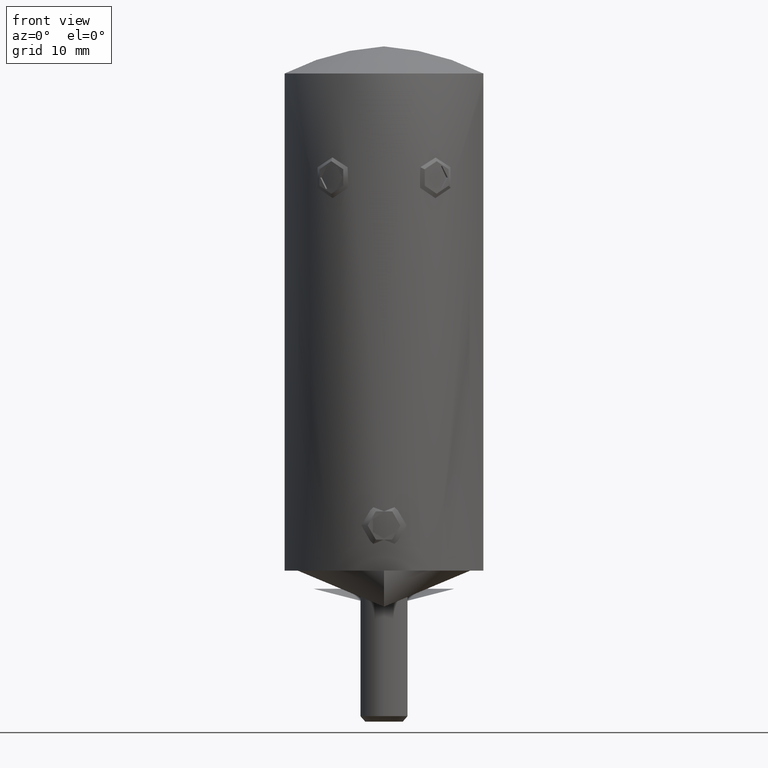
[diagram: clean part render]
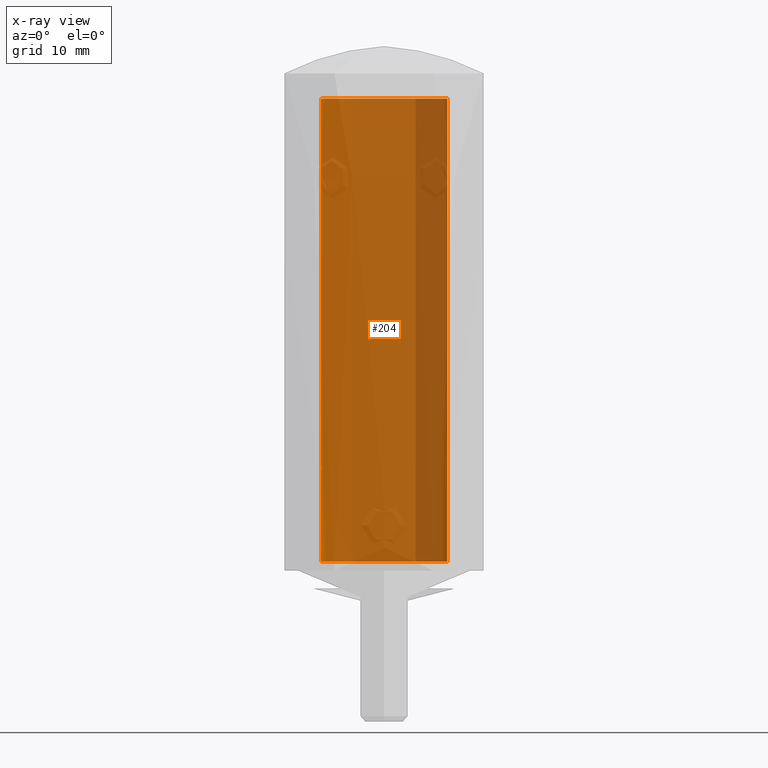
[diagram: x-ray — body ghosted, one internal face saturated and labeled with its STEP entity id]
A machine part, front view, then the same camera in x-ray: the body is ghosted and one INTERNAL B-rep face — a face not visible from any outside direction — is saturated and labeled: STEP entity #204.
In plain terms, the highlighted cylindrical surface (partial cylindrical patch) has radius 7 mm, axis along (0, 0, 1).
Its self-contained STEP definition (entity closure, byte-faithful):
#22 = VERTEX_POINT ( 'NONE', #11387 ) ;
#30 = CARTESIAN_POINT ( 'NONE',  ( 6.999999999999995559, -5.927387245860330880E-19, 49.39940828047591026 ) ) ;
#44 = CARTESIAN_POINT ( 'NONE',  ( -6.993923164209693510, 0.2916140825320512886, 8.438982371794873316 ) ) ;
#66 = EDGE_CURVE ( 'NONE', #7222, #1530, #5735, .T. ) ;
#73 = VERTEX_POINT ( 'NONE', #13250 ) ;
#74 = VERTEX_POINT ( 'NONE', #21924 ) ;
#100 = CARTESIAN_POINT ( 'NONE',  ( -6.975689736892555892, 0.5828830882876741004, 9.236500366633075387 ) ) ;
#106 = CARTESIAN_POINT ( 'NONE',  ( 6.888583070666343566, 1.265004164998520197, 49.10680606806086246 ) ) ;
#109 = CARTESIAN_POINT ( 'NONE',  ( -6.985511624158850630, 0.4501414763621794934, 8.990568659855767919 ) ) ;
#128 = DIRECTION ( 'NONE',  ( 0.000000000000000000, 0.000000000000000000, -1.000000000000000000 ) ) ;
#183 = CARTESIAN_POINT ( 'NONE',  ( 4.906518496979884958, 5.009203093844459609, 43.65973177399768446 ) ) ;
#204 = ADVANCED_FACE ( 'NONE', ( #10794 ), #8938, .F. ) ;
#212 = EDGE_CURVE ( 'NONE', #10608, #74, #4114, .T. ) ;
#250 = CARTESIAN_POINT ( 'NONE',  ( 4.359741012046949749, 5.479281829763901435, 34.32338510542538756 ) ) ;
#267 = CARTESIAN_POINT ( 'NONE',  ( 0.000000000000000000, 0.000000000000000000, 6.993950320512813512 ) ) ;
#312 = B_SPLINE_CURVE_WITH_KNOTS ( 'NONE', 3,
 ( #7593, #9385, #16173, #4310, #16027, #5895 ),
 .UNSPECIFIED., .F., .F.,
 ( 4, 2, 4 ),
 ( 0.000000000000000000, 0.0001370123827340183830, 0.0002740247654680367660 ),
 .UNSPECIFIED. ) ;
#317 = CARTESIAN_POINT ( 'NONE',  ( 4.968555832157324659, 4.935859069622506645, 33.65888611414150944 ) ) ;
#336 = LINE ( 'NONE', #11846, #20242 ) ;
#346 = VERTEX_POINT ( 'NONE', #14546 ) ;
#370 = DIRECTION ( 'NONE',  ( -0.000000000000000000, -0.000000000000000000, 1.000000000000000000 ) ) ;
#624 = CARTESIAN_POINT ( 'NONE',  ( -7.000000000000000888, 0.2610699012936794627, 32.14600281952412075 ) ) ;
#626 = VECTOR ( 'NONE', #370, 1000.000000000000000 ) ;
#725 = AXIS2_PLACEMENT_3D ( 'NONE', #267, #9052, #1856 ) ;
#772 = CARTESIAN_POINT ( 'NONE',  ( -4.016636445814717682, 5.735556909576748907, 40.75080087506890436 ) ) ;
#814 = CIRCLE ( 'NONE', #8644, 6.999999999999995559 ) ;
#827 = CARTESIAN_POINT ( 'NONE',  ( -6.993923164209693510, 0.2916140825320512886, 10.21983173076923279 ) ) ;
#832 = CARTESIAN_POINT ( 'NONE',  ( -6.978757802357542950, 0.5452346919516181112, 11.02843178862051410 ) ) ;
#880 = CARTESIAN_POINT ( 'NONE',  ( -6.998156588207514517, 0.1610190784660975594, 10.61744992361146522 ) ) ;
#893 = DIRECTION ( 'NONE',  ( -1.000000000000000000, 0.000000000000000000, 0.000000000000000000 ) ) ;
#908 = B_SPLINE_CURVE_WITH_KNOTS ( 'NONE', 3,
 ( #13540, #12053, #11819, #8679, #20692, #20987 ),
 .UNSPECIFIED., .F., .F.,
 ( 4, 2, 4 ),
 ( 0.000000000000000000, 0.0001369341710318049978, 0.0002738683420636099956 ),
 .UNSPECIFIED. ) ;
#919 = CARTESIAN_POINT ( 'NONE',  ( -6.734357332197992818, 1.920954020181363742, 48.70010116469608619 ) ) ;
#979 = ORIENTED_EDGE ( 'NONE', *, *, #15108, .T. ) ;
#1088 = DIRECTION ( 'NONE',  ( 0.000000000000000000, 0.000000000000000000, 1.000000000000000000 ) ) ;
#1096 = ORIENTED_EDGE ( 'NONE', *, *, #18020, .T. ) ;
#1108 = CARTESIAN_POINT ( 'NONE',  ( -6.975191266297922965, 0.5888198242284305994, 6.745496474921470309 ) ) ;
#1115 = EDGE_CURVE ( 'NONE', #12734, #15622, #9173, .T. ) ;
#1122 = VECTOR ( 'NONE', #16004, 1000.000000000000000 ) ;
#1126 = VERTEX_POINT ( 'NONE', #7566 ) ;
#1132 = CARTESIAN_POINT ( 'NONE',  ( 6.999999999999995559, -5.927387245860330880E-19, 49.39940828047591026 ) ) ;
#1186 = CARTESIAN_POINT ( 'NONE',  ( -6.999999999999995559, 0.000000000000000000, 7.828405448717951742 ) ) ;
#1199 = EDGE_CURVE ( 'NONE', #6439, #6143, #19649, .T. ) ;
#1220 = CARTESIAN_POINT ( 'NONE',  ( -6.982978908578843402, 0.4894453731455019607, 9.004723440354572617 ) ) ;
#1255 = EDGE_CURVE ( 'NONE', #13845, #7328, #2734, .T. ) ;
#1288 = CARTESIAN_POINT ( 'NONE',  ( 0.000000000000000000, 0.000000000000000000, 1.000000000000021760 ) ) ;
#1291 = VERTEX_POINT ( 'NONE', #8512 ) ;
#1300 = ORIENTED_EDGE ( 'NONE', *, *, #1115, .T. ) ;
#1333 = DIRECTION ( 'NONE',  ( 1.000000000000000000, 0.000000000000000000, 0.000000000000000000 ) ) ;
#1382 = DIRECTION ( 'NONE',  ( -0.000000000000000000, -0.000000000000000000, 1.000000000000000000 ) ) ;
#1410 = ORIENTED_EDGE ( 'NONE', *, *, #18425, .T. ) ;
#1427 = CARTESIAN_POINT ( 'NONE',  ( -6.990523480903471309, 0.3657506385901201917, 6.486430212463966782 ) ) ;
#1439 = CARTESIAN_POINT ( 'NONE',  ( -6.980876353886601215, 0.5171208461490348629, 9.345516922216271283 ) ) ;
#1440 = CARTESIAN_POINT ( 'NONE',  ( 0.000000000000000000, 0.000000000000000000, 7.156770833333330195 ) ) ;
#1458 = CARTESIAN_POINT ( 'NONE',  ( -6.998052630925505113, 0.1671527379292125082, 11.05954593914197659 ) ) ;
#1510 = CARTESIAN_POINT ( 'NONE',  ( -6.978300797048322401, 0.5509750586898770619, 6.570586085569856571 ) ) ;
#1511 = VERTEX_POINT ( 'NONE', #17534 ) ;
#1530 = VERTEX_POINT ( 'NONE', #20267 ) ;
#1562 = CARTESIAN_POINT ( 'NONE',  ( -6.992255263739547644, 0.3310283326966321216, 7.156873149467362083 ) ) ;
#1582 = EDGE_CURVE ( 'NONE', #15972, #5810, #9485, .T. ) ;
#1587 = DIRECTION ( 'NONE',  ( -0.000000000000000000, -0.000000000000000000, 1.000000000000000000 ) ) ;
#1593 = VERTEX_POINT ( 'NONE', #4668 ) ;
#1620 = CARTESIAN_POINT ( 'NONE',  ( -6.977336603706266516, 0.5629660452798668224, 8.885337017328458487 ) ) ;
#1632 = CARTESIAN_POINT ( 'NONE',  ( -6.979136293074546415, 0.5404259276506226950, 7.536425859719732223 ) ) ;
#1639 = CARTESIAN_POINT ( 'NONE',  ( -6.999999999999995559, 8.572527594031467273E-16, 57.99999999999999289 ) ) ;
#1662 = CARTESIAN_POINT ( 'NONE',  ( -6.981410257884977710, 0.5098704640730203907, 9.351888172789761811 ) ) ;
#1714 = CARTESIAN_POINT ( 'NONE',  ( -6.999999999999995559, 6.822282560421373630E-12, 8.217234662197284933 ) ) ;
#1856 = DIRECTION ( 'NONE',  ( -1.000000000000000000, 0.000000000000000000, 0.000000000000000000 ) ) ;
#1859 = DIRECTION ( 'NONE',  ( -1.000000000000000000, 0.000000000000000000, 0.000000000000000000 ) ) ;
#1877 = AXIS2_PLACEMENT_3D ( 'NONE', #8595, #6652, #18620 ) ;
#1899 = CARTESIAN_POINT ( 'NONE',  ( -6.975137246310718631, 0.5894582142183795170, 9.195747917949017136 ) ) ;
#1905 = CARTESIAN_POINT ( 'NONE',  ( 5.870376529966799595, 3.825300994748022543, 46.37851730944384343 ) ) ;
#1927 = CARTESIAN_POINT ( 'NONE',  ( -6.998393933595229655, 0.1499411558493589647, 10.59635416666667318 ) ) ;
#1954 = CARTESIAN_POINT ( 'NONE',  ( -6.994605575281114263, 0.2747596153846154632, 10.56582532051282897 ) ) ;
#2134 = ORIENTED_EDGE ( 'NONE', *, *, #21856, .F. ) ;
#2173 = EDGE_CURVE ( 'NONE', #17593, #5739, #12114, .T. ) ;
#2244 = CIRCLE ( 'NONE', #14201, 6.999999999999995559 ) ;
#2245 = EDGE_CURVE ( 'NONE', #22282, #1511, #19140, .T. ) ;
#2267 = VERTEX_POINT ( 'NONE', #13686 ) ;
#2325 = ORIENTED_EDGE ( 'NONE', *, *, #19313, .T. ) ;
#2362 = CARTESIAN_POINT ( 'NONE',  ( -3.655382933633834153, 5.970254345762568526, 35.62956470776769891 ) ) ;
#2373 = CARTESIAN_POINT ( 'NONE',  ( -6.983852485567708435, 0.4759911326303037926, 8.377042280810723440 ) ) ;
#2418 = EDGE_CURVE ( 'NONE', #346, #5739, #15822, .T. ) ;
#2428 = CARTESIAN_POINT ( 'NONE',  ( -6.611031297507477866, 2.309956321828706471, 48.37336816417462870 ) ) ;
#2448 = CARTESIAN_POINT ( 'NONE',  ( -6.992613599630832510, 0.3233864536454382765, 11.15510758115494028 ) ) ;
#2469 = CARTESIAN_POINT ( 'NONE',  ( -6.975926048092667031, 0.5800480769230769162, 57.99999999999999289 ) ) ;
#2512 = CARTESIAN_POINT ( 'NONE',  ( -6.990270887320200188, 0.3707298341137595932, 10.21262541665706891 ) ) ;
#2518 = B_SPLINE_CURVE_WITH_KNOTS ( 'NONE', 3,
 ( #4929, #5084, #18682, #13653, #10362, #12019 ),
 .UNSPECIFIED., .F., .F.,
 ( 4, 2, 4 ),
 ( 0.000000000000000000, 0.0001352648156522844405, 0.0002705296313045688810 ),
 .UNSPECIFIED. ) ;
#2519 = DIRECTION ( 'NONE',  ( 0.000000000000000000, 0.000000000000000000, -1.000000000000000000 ) ) ;
#2526 = CARTESIAN_POINT ( 'NONE',  ( -6.985313249679779624, 0.4540790630715514364, 11.11013651070508601 ) ) ;
#2582 = CARTESIAN_POINT ( 'NONE',  ( -5.276021630941636786, 4.624689923852043805, 33.37471456375607204 ) ) ;
#2625 = EDGE_CURVE ( 'NONE', #2940, #7682, #7537, .T. ) ;
#2648 = CARTESIAN_POINT ( 'NONE',  ( -6.928691501776661710, 1.027784795415321195, 49.21221570769370146 ) ) ;
#2671 = EDGE_CURVE ( 'NONE', #15118, #10470, #8799, .T. ) ;
#2700 = CARTESIAN_POINT ( 'NONE',  ( -6.999999999999995559, 0.000000000000000000, 11.64451121794871469 ) ) ;
#2704 = CARTESIAN_POINT ( 'NONE',  ( -6.991491920302551399, 0.3467049090110387310, 10.57064046662852519 ) ) ;
#2728 = CARTESIAN_POINT ( 'NONE',  ( 6.999999999999995559, 0.000000000000000000, 57.99999999999999289 ) ) ;
#2734 = CIRCLE ( 'NONE', #12743, 6.999999999999995559 ) ;
#2765 = EDGE_CURVE ( 'NONE', #7226, #15257, #5943, .T. ) ;
#2814 = ORIENTED_EDGE ( 'NONE', *, *, #12382, .T. ) ;
#2909 = CARTESIAN_POINT ( 'NONE',  ( -6.979136293074545527, 0.5404259276506220289, 6.864791244335112452 ) ) ;
#2940 = VERTEX_POINT ( 'NONE', #14381 ) ;
#2988 = AXIS2_PLACEMENT_3D ( 'NONE', #7836, #1088, #21443 ) ;
#3029 = CARTESIAN_POINT ( 'NONE',  ( 0.000000000000000000, 0.000000000000000000, 9.375200320512814045 ) ) ;
#3034 = CARTESIAN_POINT ( 'NONE',  ( -6.993729378862254542, 0.2962252103365384248, 6.485136217948721082 ) ) ;
#3042 = CARTESIAN_POINT ( 'NONE',  ( -6.999733706235544695, 0.06105769230769231282, 10.87318083934295565 ) ) ;
#3046 = CARTESIAN_POINT ( 'NONE',  ( -6.984330604154168398, 0.4681089743589743613, 57.99999999999999289 ) ) ;
#3085 = B_SPLINE_CURVE_WITH_KNOTS ( 'NONE', 3,
 ( #11899, #13678, #1632, #22133, #11814, #3446 ),
 .UNSPECIFIED., .F., .F.,
 ( 4, 2, 4 ),
 ( 0.000000000000000000, 0.0001296520078280015507, 0.0002593040156560031013 ),
 .UNSPECIFIED. ) ;
#3127 = VERTEX_POINT ( 'NONE', #11173 ) ;
#3174 = CARTESIAN_POINT ( 'NONE',  ( -6.978367668599761764, 0.5500020157131935150, 9.310538615506413151 ) ) ;
#3239 = CARTESIAN_POINT ( 'NONE',  ( -6.993729378862254542, 0.2962252103365384248, 6.485136217948721082 ) ) ;
#3261 = CARTESIAN_POINT ( 'NONE',  ( -6.999727933340092356, 0.06171950459328569283, 10.90135257210054931 ) ) ;
#3266 = CARTESIAN_POINT ( 'NONE',  ( -6.999777645199423581, 0.05883047230112805476, 11.06035176852786250 ) ) ;
#3301 = DIRECTION ( 'NONE',  ( -0.000000000000000000, -0.000000000000000000, 1.000000000000000000 ) ) ;
#3358 = VERTEX_POINT ( 'NONE', #2700 ) ;
#3432 = CARTESIAN_POINT ( 'NONE',  ( 3.468281400383606439, 6.080486315491487659, 37.96762995942553687 ) ) ;
#3446 = CARTESIAN_POINT ( 'NONE',  ( -6.975072415830049444, 0.5902243589743590979, 7.373652844551282115 ) ) ;
#3467 = CARTESIAN_POINT ( 'NONE',  ( 0.000000000000000000, 0.000000000000000000, 9.609254807692302336 ) ) ;
#3471 = DIRECTION ( 'NONE',  ( -0.000000000000000000, -0.000000000000000000, 1.000000000000000000 ) ) ;
#3481 = CARTESIAN_POINT ( 'NONE',  ( -6.984330604154168398, 0.4681089743589743613, 11.25781249999999467 ) ) ;
#3496 = CARTESIAN_POINT ( 'NONE',  ( 5.271235655894027872, 4.611217460982597771, 33.38449821825411590 ) ) ;
#3505 = VERTEX_POINT ( 'NONE', #13970 ) ;
#3574 = CARTESIAN_POINT ( 'NONE',  ( -6.975711601572104570, 0.5828406137837846002, 7.303705376855785580 ) ) ;
#3650 = CARTESIAN_POINT ( 'NONE',  ( 6.984745093254800530, 0.5258923355929293608, 49.35941717753718905 ) ) ;
#3700 = EDGE_CURVE ( 'NONE', #3358, #22, #6501, .T. ) ;
#3723 = CARTESIAN_POINT ( 'NONE',  ( 3.955337484900655731, 5.776827208771210032, 34.93539008049922501 ) ) ;
#3796 = EDGE_CURVE ( 'NONE', #17542, #16929, #312, .T. ) ;
#3857 = LINE ( 'NONE', #10533, #7846 ) ;
#3882 = CARTESIAN_POINT ( 'NONE',  ( -6.998393933595229655, 0.1499411558493589647, 10.59635416666667318 ) ) ;
#3893 = CARTESIAN_POINT ( 'NONE',  ( -6.992269128914476717, 0.3312836199741278076, 8.437864498309846084 ) ) ;
#3954 = DIRECTION ( 'NONE',  ( -0.000000000000000000, -0.000000000000000000, 1.000000000000000000 ) ) ;
#3986 = EDGE_CURVE ( 'NONE', #7755, #13924, #21589, .T. ) ;
#4015 = DIRECTION ( 'NONE',  ( 0.000000000000000000, 0.000000000000000000, 1.000000000000000000 ) ) ;
#4024 = CARTESIAN_POINT ( 'NONE',  ( -6.989310702890290550, 0.3866987179487179627, 57.99999999999999289 ) ) ;
#4038 = CARTESIAN_POINT ( 'NONE',  ( -6.975168945471281745, 0.5890836042297992181, 9.955013894102261673 ) ) ;
#4044 = B_SPLINE_CURVE_WITH_KNOTS ( 'NONE', 3,
 ( #6794, #7009, #20535, #22281, #13669, #8594, #20613, #13732, #18932, #13811 ),
 .UNSPECIFIED., .F., .F.,
 ( 4, 2, 2, 2, 4 ),
 ( 0.000000000000000000, 9.575658788308767893E-05, 0.0001915131757661753579, 0.0002872697636492630097, 0.0003830263515323507157 ),
 .UNSPECIFIED. ) ;
#4086 = EDGE_CURVE ( 'NONE', #8769, #16126, #15639, .T. ) ;
#4093 = CARTESIAN_POINT ( 'NONE',  ( -6.999999999999988454, 0.1331964725967407226, 49.39940828047588184 ) ) ;
#4114 = CIRCLE ( 'NONE', #17743, 6.999999999999995559 ) ;
#4176 = CARTESIAN_POINT ( 'NONE',  ( -6.543738411085444184, 2.492623006460873203, 48.19456803383835108 ) ) ;
#4186 = DIRECTION ( 'NONE',  ( 1.000000000000000000, 0.000000000000000000, 0.000000000000000000 ) ) ;
#4221 = CARTESIAN_POINT ( 'NONE',  ( 0.000000000000000000, 0.000000000000000000, 11.25781249999999467 ) ) ;
#4235 = DIRECTION ( 'NONE',  ( 1.000000000000000000, 0.000000000000000000, 0.000000000000000000 ) ) ;
#4295 = EDGE_CURVE ( 'NONE', #16929, #14520, #19427, .T. ) ;
#4310 = CARTESIAN_POINT ( 'NONE',  ( -6.979367170375266660, 0.5374862058803300258, 9.742090909212389960 ) ) ;
#4316 = CARTESIAN_POINT ( 'NONE',  ( -4.513954613622011003, 5.354015904551115312, 34.13626347998638977 ) ) ;
#4344 = ORIENTED_EDGE ( 'NONE', *, *, #2765, .T. ) ;
#4352 = CARTESIAN_POINT ( 'NONE',  ( -6.992945226585870699, 0.3141927083333333481, 8.581450320512818308 ) ) ;
#4355 = CARTESIAN_POINT ( 'NONE',  ( 6.999999999999992006, 0.000000000000000000, 52.20360331117451835 ) ) ;
#4356 = AXIS2_PLACEMENT_3D ( 'NONE', #16096, #4383, #9610 ) ;
#4383 = DIRECTION ( 'NONE',  ( 0.000000000000000000, 0.000000000000000000, 1.000000000000000000 ) ) ;
#4387 = CARTESIAN_POINT ( 'NONE',  ( -4.443635638328728987, 5.412522082055398975, 42.21272435028447489 ) ) ;
#4457 = CARTESIAN_POINT ( 'NONE',  ( -6.987780971491175386, 0.4148260599986984265, 10.59092108744495597 ) ) ;
#4535 = DIRECTION ( 'NONE',  ( 0.000000000000000000, 0.000000000000000000, -1.000000000000000000 ) ) ;
#4583 = CARTESIAN_POINT ( 'NONE',  ( -6.999999999999995559, 0.000000000000000000, 11.57327724358974130 ) ) ;
#4614 = CARTESIAN_POINT ( 'NONE',  ( -6.975072415830049444, 0.5902243589743590979, 9.175172776442305889 ) ) ;
#4634 = CARTESIAN_POINT ( 'NONE',  ( -6.983575710892729660, 0.4792392828525641191, 9.375200320512814045 ) ) ;
#4668 = CARTESIAN_POINT ( 'NONE',  ( -6.983836538944188099, 0.4754231770833333148, 6.922716346153841904 ) ) ;
#4737 = DIRECTION ( 'NONE',  ( 0.000000000000000000, 0.000000000000000000, 1.000000000000000000 ) ) ;
#4784 = CARTESIAN_POINT ( 'NONE',  ( -6.999999999999995559, 8.572527594031467273E-16, 57.99999999999999289 ) ) ;
#4793 = CARTESIAN_POINT ( 'NONE',  ( -6.997602991302841247, 0.1831730769230769384, 10.65963792067308269 ) ) ;
#4822 = AXIS2_PLACEMENT_3D ( 'NONE', #1288, #8264, #13266 ) ;
#4838 = CARTESIAN_POINT ( 'NONE',  ( -6.980354219200949117, 0.5240753519136597260, 9.338852402072914671 ) ) ;
#4909 = DIRECTION ( 'NONE',  ( -0.000000000000000000, -0.000000000000000000, 1.000000000000000000 ) ) ;
#4923 = ORIENTED_EDGE ( 'NONE', *, *, #3700, .F. ) ;
#4929 = CARTESIAN_POINT ( 'NONE',  ( -6.975072415830049444, 0.5902243589743589869, 10.86252754407051846 ) ) ;
#4932 = CARTESIAN_POINT ( 'NONE',  ( -6.998563910360752871, 0.1432152236574820159, 11.04421904568840951 ) ) ;
#5004 = VERTEX_POINT ( 'NONE', #21696 ) ;
#5013 = ORIENTED_EDGE ( 'NONE', *, *, #11166, .T. ) ;
#5016 = CARTESIAN_POINT ( 'NONE',  ( -6.995375128963767786, 0.2564238607800123360, 11.15513886547716815 ) ) ;
#5024 = CARTESIAN_POINT ( 'NONE',  ( -6.982983413948095297, 0.4893754566616207446, 8.968810940914650587 ) ) ;
#5063 = DIRECTION ( 'NONE',  ( 1.000000000000000000, 0.000000000000000000, 0.000000000000000000 ) ) ;
#5084 = CARTESIAN_POINT ( 'NONE',  ( -6.975171153017885040, 0.5890575161885401867, 10.81733116289036012 ) ) ;
#5163 = CARTESIAN_POINT ( 'NONE',  ( 5.709968510572453582, 4.057751013838752918, 45.93707633461480100 ) ) ;
#5215 = LINE ( 'NONE', #6691, #19410 ) ;
#5262 = ORIENTED_EDGE ( 'NONE', *, *, #4086, .T. ) ;
#5276 = DIRECTION ( 'NONE',  ( 1.000000000000000000, 0.000000000000000000, 0.000000000000000000 ) ) ;
#5300 = ORIENTED_EDGE ( 'NONE', *, *, #7550, .F. ) ;
#5314 = CARTESIAN_POINT ( 'NONE',  ( 3.480954223475210885, 6.073194233690685451, 36.39721272856005641 ) ) ;
#5356 = CARTESIAN_POINT ( 'NONE',  ( -6.999999999999995559, 8.572527594031467273E-16, 57.99999999999999289 ) ) ;
#5363 = CARTESIAN_POINT ( 'NONE',  ( -6.999999999999995559, 8.572527594031467273E-16, 57.99999999999999289 ) ) ;
#5402 = DIRECTION ( 'NONE',  ( -0.000000000000000000, -0.000000000000000000, 1.000000000000000000 ) ) ;
#5414 = VECTOR ( 'NONE', #5689, 1000.000000000000000 ) ;
#5426 = VERTEX_POINT ( 'NONE', #14596 ) ;
#5454 = CARTESIAN_POINT ( 'NONE',  ( 4.507723755154894540, 5.359312962515585532, 34.14347000413675914 ) ) ;
#5478 = B_SPLINE_CURVE_WITH_KNOTS ( 'NONE', 3,
 ( #44, #3893, #12623, #5557, #2373, #16042, #7397, #7468, #19243, #12403 ),
 .UNSPECIFIED., .F., .F.,
 ( 4, 2, 2, 2, 4 ),
 ( 0.000000000000000000, 0.0001179767162651244384, 0.0002359534325302488768, 0.0003539301487953732880, 0.0004719068650604977535 ),
 .UNSPECIFIED. ) ;
#5536 = LINE ( 'NONE', #2728, #19986 ) ;
#5557 = CARTESIAN_POINT ( 'NONE',  ( -6.986032632502583439, 0.4434813926506070980, 8.400486848746957946 ) ) ;
#5615 = CARTESIAN_POINT ( 'NONE',  ( -6.999999999999999112, 0.01016127060035310406, 10.73889666718411107 ) ) ;
#5627 = CARTESIAN_POINT ( 'NONE',  ( 0.000000000000000000, 0.000000000000000000, 11.25781249999999467 ) ) ;
#5629 = CARTESIAN_POINT ( 'NONE',  ( 6.999999999999995559, -1.069105884036878258E-46, 32.14600281952411365 ) ) ;
#5657 = CARTESIAN_POINT ( 'NONE',  ( -6.975072415830049444, 0.5902243589743590979, 7.373652844551282115 ) ) ;
#5688 = CIRCLE ( 'NONE', #6345, 6.999999999999995559 ) ;
#5689 = DIRECTION ( 'NONE',  ( -0.000000000000000000, -0.000000000000000000, 1.000000000000000000 ) ) ;
#5712 = EDGE_CURVE ( 'NONE', #1530, #18285, #9998, .T. ) ;
#5735 = LINE ( 'NONE', #6310, #20745 ) ;
#5739 = VERTEX_POINT ( 'NONE', #4583 ) ;
#5754 = CARTESIAN_POINT ( 'NONE',  ( -6.999572894926471278, 0.08162138506031074714, 10.63915891840698080 ) ) ;
#5763 = CARTESIAN_POINT ( 'NONE',  ( -6.983852485567714652, 0.4759911326303153944, 10.15789163978508114 ) ) ;
#5773 = CARTESIAN_POINT ( 'NONE',  ( -6.999726386330049621, 0.06189685584760252351, 10.82991391746099552 ) ) ;
#5810 = VERTEX_POINT ( 'NONE', #18558 ) ;
#5828 = CARTESIAN_POINT ( 'NONE',  ( -6.999999999999995559, 8.572527594031274002E-16, 49.39940828047589605 ) ) ;
#5829 = CARTESIAN_POINT ( 'NONE',  ( -6.999987181472783426, 0.02936360170756957891, 10.70195729518574979 ) ) ;
#5895 = CARTESIAN_POINT ( 'NONE',  ( -6.984351910703994193, 0.4677909655448718174, 9.680488782051282826 ) ) ;
#5902 = EDGE_CURVE ( 'NONE', #16126, #11051, #2244, .T. ) ;
#5938 = ORIENTED_EDGE ( 'NONE', *, *, #66, .T. ) ;
#5943 = LINE ( 'NONE', #15737, #16076 ) ;
#5949 = CARTESIAN_POINT ( 'NONE',  ( -7.000000000000000888, 6.835901262026448293E-12, 9.998084021171697700 ) ) ;
#5974 = CARTESIAN_POINT ( 'NONE',  ( -6.983378714962022116, 0.4821013621794871806, 11.08926782852564052 ) ) ;
#6040 = CARTESIAN_POINT ( 'NONE',  ( -6.882762550482688368, 1.301561327987563521, 32.21941108549695798 ) ) ;
#6055 = CIRCLE ( 'NONE', #11785, 6.999999999999995559 ) ;
#6067 = EDGE_CURVE ( 'NONE', #5004, #10406, #18862, .T. ) ;
#6133 = ORIENTED_EDGE ( 'NONE', *, *, #11576, .T. ) ;
#6143 = VERTEX_POINT ( 'NONE', #19233 ) ;
#6162 = EDGE_CURVE ( 'NONE', #18500, #10147, #11796, .T. ) ;
#6171 = CARTESIAN_POINT ( 'NONE',  ( -6.983793213084888762, 0.4760591947115384581, 10.62895007011218240 ) ) ;
#6310 = CARTESIAN_POINT ( 'NONE',  ( -6.975926048092667031, 0.5800480769230769162, 57.99999999999999289 ) ) ;
#6313 = CARTESIAN_POINT ( 'NONE',  ( -6.999961102973563776, 0.05654581292592481684, 10.11787136219349748 ) ) ;
#6316 = ORIENTED_EDGE ( 'NONE', *, *, #7519, .T. ) ;
#6321 = DIRECTION ( 'NONE',  ( 0.000000000000000000, 0.000000000000000000, 1.000000000000000000 ) ) ;
#6345 = AXIS2_PLACEMENT_3D ( 'NONE', #10168, #10455, #13676 ) ;
#6372 = EDGE_CURVE ( 'NONE', #17598, #21738, #20738, .T. ) ;
#6412 = CARTESIAN_POINT ( 'NONE',  ( -6.999999999999993783, 0.007907160690601761424, 10.97944520244698197 ) ) ;
#6428 = ORIENTED_EDGE ( 'NONE', *, *, #19784, .T. ) ;
#6436 = B_SPLINE_CURVE_WITH_KNOTS ( 'NONE', 3,
 ( #9058, #2448, #19547, #17800, #2526, #7477 ),
 .UNSPECIFIED., .F., .F.,
 ( 4, 2, 4 ),
 ( 0.000000000000000000, 0.0001048519133931838853, 0.0002097038267863677707 ),
 .UNSPECIFIED. ) ;
#6439 = VERTEX_POINT ( 'NONE', #16121 ) ;
#6469 = AXIS2_PLACEMENT_3D ( 'NONE', #11741, #13220, #16810 ) ;
#6481 = VECTOR ( 'NONE', #6515, 1000.000000000000000 ) ;
#6501 = LINE ( 'NONE', #1639, #15558 ) ;
#6503 = ORIENTED_EDGE ( 'NONE', *, *, #20084, .T. ) ;
#6512 = CARTESIAN_POINT ( 'NONE',  ( -6.999999999999995559, 6.822282560421373630E-12, 8.217234662197284933 ) ) ;
#6515 = DIRECTION ( 'NONE',  ( -0.000000000000000000, -0.000000000000000000, 1.000000000000000000 ) ) ;
#6553 = VERTEX_POINT ( 'NONE', #11874 ) ;
#6577 = ORIENTED_EDGE ( 'NONE', *, *, #9908, .T. ) ;
#6621 = CARTESIAN_POINT ( 'NONE',  ( -6.975926048092667031, 0.5800480769230769162, 57.99999999999999289 ) ) ;
#6628 = CARTESIAN_POINT ( 'NONE',  ( -6.978300797048319737, 0.5509750586898745084, 7.242220700954467461 ) ) ;
#6639 = CARTESIAN_POINT ( 'NONE',  ( -6.999699122789866834, 0.06574008209051425411, 10.92947201391968015 ) ) ;
#6650 = CARTESIAN_POINT ( 'NONE',  ( -6.975355233235646324, 0.5869125839159093916, 8.822634284688527728 ) ) ;
#6652 = DIRECTION ( 'NONE',  ( 0.000000000000000000, 0.000000000000000000, -1.000000000000000000 ) ) ;
#6654 = VERTEX_POINT ( 'NONE', #3034 ) ;
#6674 = CARTESIAN_POINT ( 'NONE',  ( -6.998163288277094551, 0.1633117209089772204, 8.413756389117235557 ) ) ;
#6691 = CARTESIAN_POINT ( 'NONE',  ( -6.994605575281114263, 0.2747596153846154077, 57.99999999999999289 ) ) ;
#6729 = ORIENTED_EDGE ( 'NONE', *, *, #15857, .T. ) ;
#6759 = CARTESIAN_POINT ( 'NONE',  ( -6.999999999999995559, 0.000000000000000000, 8.581450320512818308 ) ) ;
#6794 = CARTESIAN_POINT ( 'NONE',  ( -6.975072415830049444, 0.5902243589743589869, 8.777820763221148681 ) ) ;
#6797 = ORIENTED_EDGE ( 'NONE', *, *, #212, .T. ) ;
#6821 = CARTESIAN_POINT ( 'NONE',  ( -6.975185519710941584, 0.5888877354552816135, 10.90625314056816997 ) ) ;
#6844 = CARTESIAN_POINT ( 'NONE',  ( -6.975072415830049444, 0.5902243589743589869, 10.86252754407051846 ) ) ;
#6848 = EDGE_CURVE ( 'NONE', #12795, #346, #15085, .T. ) ;
#6870 = CARTESIAN_POINT ( 'NONE',  ( 6.609966749525822749, 2.313107632880133657, 48.37054425271381319 ) ) ;
#6926 = ORIENTED_EDGE ( 'NONE', *, *, #1199, .T. ) ;
#6956 = CARTESIAN_POINT ( 'NONE',  ( -6.984343760806194013, 0.4688249907980752695, 7.177814552741412335 ) ) ;
#6971 = CARTESIAN_POINT ( 'NONE',  ( 0.000000000000000000, 0.000000000000000000, 52.20360331117451835 ) ) ;
#6980 = CARTESIAN_POINT ( 'NONE',  ( -6.980184269215653714, 0.5271453394497152001, 7.215240515509816710 ) ) ;
#7006 = CARTESIAN_POINT ( 'NONE',  ( 6.217533132915800564, 3.225659211463324905, 32.65913758347663531 ) ) ;
#7009 = CARTESIAN_POINT ( 'NONE',  ( -6.975175102049227860, 0.5890108478679535464, 8.745643877088797424 ) ) ;
#7043 = ORIENTED_EDGE ( 'NONE', *, *, #7435, .T. ) ;
#7161 = CARTESIAN_POINT ( 'NONE',  ( 3.741211930332147606, 5.917749615504189542, 35.39192438417801867 ) ) ;
#7199 = CARTESIAN_POINT ( 'NONE',  ( -6.952498616693251421, 0.8141025641025640969, 57.99999999999999289 ) ) ;
#7200 = AXIS2_PLACEMENT_3D ( 'NONE', #6971, #15478, #5276 ) ;
#7222 = VERTEX_POINT ( 'NONE', #13257 ) ;
#7226 = VERTEX_POINT ( 'NONE', #18424 ) ;
#7273 = ORIENTED_EDGE ( 'NONE', *, *, #15002, .T. ) ;
#7328 = VERTEX_POINT ( 'NONE', #6759 ) ;
#7340 = LINE ( 'NONE', #7199, #8125 ) ;
#7397 = CARTESIAN_POINT ( 'NONE',  ( -6.978068893818804241, 0.5538693984491513955, 8.286707862624551169 ) ) ;
#7406 = EDGE_CURVE ( 'NONE', #18206, #1291, #336, .T. ) ;
#7435 = EDGE_CURVE ( 'NONE', #21938, #2267, #5215, .T. ) ;
#7447 = DIRECTION ( 'NONE',  ( 0.000000000000000000, 0.000000000000000000, 1.000000000000000000 ) ) ;
#7457 = CARTESIAN_POINT ( 'NONE',  ( -6.970579123422647072, 0.6533020451706040843, 49.32221655430807061 ) ) ;
#7468 = CARTESIAN_POINT ( 'NONE',  ( -6.975677100225954774, 0.5832201906683368575, 8.214072422629190129 ) ) ;
#7477 = CARTESIAN_POINT ( 'NONE',  ( -6.983378714962022116, 0.4821013621794871806, 11.08926782852564052 ) ) ;
#7519 = EDGE_CURVE ( 'NONE', #14520, #10608, #7340, .T. ) ;
#7525 = CARTESIAN_POINT ( 'NONE',  ( -6.183802349246660945, 3.294664250671874850, 47.23127411132368536 ) ) ;
#7537 = LINE ( 'NONE', #4784, #11541 ) ;
#7550 = EDGE_CURVE ( 'NONE', #15972, #16459, #17222, .T. ) ;
#7560 = CARTESIAN_POINT ( 'NONE',  ( -6.997892940281262852, 0.1720964063075262618, 10.63854454792193671 ) ) ;
#7566 = CARTESIAN_POINT ( 'NONE',  ( -6.984020024671357518, 0.4727201021634615530, 7.899639423076924238 ) ) ;
#7593 = CARTESIAN_POINT ( 'NONE',  ( -6.975072415830049444, 0.5902243589743589869, 9.915179286858981200 ) ) ;
#7596 = CARTESIAN_POINT ( 'NONE',  ( -6.975926048092667031, 0.5800480769230769162, 9.375200320512814045 ) ) ;
#7600 = CARTESIAN_POINT ( 'NONE',  ( -6.999999999999995559, 8.572527588244542431E-16, 32.14600281952411365 ) ) ;
#7666 = CARTESIAN_POINT ( 'NONE',  ( -6.994055034876375920, 0.2884339943910256276, 11.15604967948717885 ) ) ;
#7682 = VERTEX_POINT ( 'NONE', #11072 ) ;
#7740 = VERTEX_POINT ( 'NONE', #13011 ) ;
#7748 = CARTESIAN_POINT ( 'NONE',  ( -3.560944021736228482, 6.027010091504671152, 38.74210623119559216 ) ) ;
#7755 = VERTEX_POINT ( 'NONE', #14499 ) ;
#7792 = CARTESIAN_POINT ( 'NONE',  ( 0.000000000000000000, 0.000000000000000000, 9.680488782051289931 ) ) ;
#7800 = EDGE_LOOP ( 'NONE', ( #11905, #6503, #15675, #6729, #21322, #979, #17650, #20271, #4923, #5013, #2814, #6926, #16293, #6133, #13892, #10588, #17898, #20922, #21964, #8794, #14575, #16006, #9582, #13483, #7043, #13246, #12289, #18553, #14913, #11118, #15072, #4344, #6428, #5300, #20366, #14999, #10242, #14924, #6316, #6797, #21154, #21814, #5262, #17407, #1096, #11607, #18793, #18919, #10175, #9858, #2134, #12522, #1410, #19621, #15375, #1300, #20339, #21063, #19585, #5938, #21163, #20086, #12462, #6577, #16760, #10603, #19030, #9082, #2325, #7273, #15624 ) ) ;
#7806 = B_SPLINE_CURVE_WITH_KNOTS ( 'NONE', 3,
 ( #10909, #9183, #2512, #21206, #5763, #18303, #8047, #14838, #4038, #21276 ),
 .UNSPECIFIED., .F., .F.,
 ( 4, 2, 2, 2, 4 ),
 ( 0.000000000000000000, 0.0001179767162651419482, 0.0002359534325302838965, 0.0003539301487954258718, 0.0004719068650605677930 ),
 .UNSPECIFIED. ) ;
#7836 = CARTESIAN_POINT ( 'NONE',  ( 0.000000000000000000, 0.000000000000000000, 11.57327724358974130 ) ) ;
#7846 = VECTOR ( 'NONE', #5402, 1000.000000000000000 ) ;
#7874 = VERTEX_POINT ( 'NONE', #4355 ) ;
#7987 = CARTESIAN_POINT ( 'NONE',  ( -6.975926048092667031, 0.5800480769230769162, 6.993950320512813512 ) ) ;
#8006 = CARTESIAN_POINT ( 'NONE',  ( 0.000000000000000000, 0.000000000000000000, 7.594350961538464340 ) ) ;
#8041 = CARTESIAN_POINT ( 'NONE',  ( -6.975192037068975281, 0.5888107155160745565, 9.133393318208645084 ) ) ;
#8047 = CARTESIAN_POINT ( 'NONE',  ( -6.978068893818807794, 0.5538693984491531719, 10.06755722159890354 ) ) ;
#8082 = CARTESIAN_POINT ( 'NONE',  ( -6.975782502722529976, 0.5820651234904969940, 10.95005352462430892 ) ) ;
#8089 = B_SPLINE_CURVE_WITH_KNOTS ( 'NONE', 3,
 ( #13275, #18685, #11719, #1458, #4932, #10148, #16866, #6639, #3261, #11485 ),
 .UNSPECIFIED., .F., .F.,
 ( 4, 2, 2, 2, 4 ),
 ( 0.000000000000000000, 8.293040105299263507E-05, 0.0001658608021059852701, 0.0002487912031589779188, 0.0003317216042119705403 ),
 .UNSPECIFIED. ) ;
#8118 = CARTESIAN_POINT ( 'NONE',  ( -6.975926048092667031, 0.5800480769230769162, 9.446434294871787429 ) ) ;
#8125 = VECTOR ( 'NONE', #12075, 1000.000000000000000 ) ;
#8187 = CARTESIAN_POINT ( 'NONE',  ( -6.981952425540615792, 0.5023348758421947169, 9.357886053086167166 ) ) ;
#8191 = CARTESIAN_POINT ( 'NONE',  ( -6.975926048092667031, 0.5800480769230769162, 6.922716346153848122 ) ) ;
#8212 = DIRECTION ( 'NONE',  ( -0.000000000000000000, -0.000000000000000000, 1.000000000000000000 ) ) ;
#8248 = B_SPLINE_CURVE_WITH_KNOTS ( 'NONE', 3,
 ( #6171, #9602, #4457, #2704, #9666, #14594 ),
 .UNSPECIFIED., .F., .F.,
 ( 4, 2, 4 ),
 ( 5.421010862427614855E-20, 0.0001077436105361409188, 0.0002154872210722817835 ),
 .UNSPECIFIED. ) ;
#8264 = DIRECTION ( 'NONE',  ( -0.000000000000000000, -0.000000000000000000, -1.000000000000000000 ) ) ;
#8283 = EDGE_CURVE ( 'NONE', #13881, #16915, #3857, .T. ) ;
#8285 = EDGE_CURVE ( 'NONE', #18206, #17426, #16383, .T. ) ;
#8309 = B_SPLINE_CURVE_WITH_KNOTS ( 'NONE', 3,
 ( #18658, #21998, #20264, #1510, #16993, #13480, #11529, #1427, #18417, #3239 ),
 .UNSPECIFIED., .F., .F.,
 ( 4, 2, 2, 2, 4 ),
 ( 0.000000000000000000, 0.0001037594472690259683, 0.0002075188945380519365, 0.0003112783418070778777, 0.0004150377890761038730 ),
 .UNSPECIFIED. ) ;
#8337 = CARTESIAN_POINT ( 'NONE',  ( -6.977499106223290504, 0.5608085436698718729, 9.294744090544874382 ) ) ;
#8362 = CARTESIAN_POINT ( 'NONE',  ( -6.980291260872061088, 0.5255105247498750298, 8.940580860674320007 ) ) ;
#8400 = CIRCLE ( 'NONE', #6469, 6.999999999999995559 ) ;
#8481 = CIRCLE ( 'NONE', #4822, 6.999999999999995559 ) ;
#8512 = CARTESIAN_POINT ( 'NONE',  ( -6.999999999999995559, 0.000000000000000000, 7.156770833333330195 ) ) ;
#8537 = CARTESIAN_POINT ( 'NONE',  ( 0.000000000000000000, 0.000000000000000000, 11.64451121794871469 ) ) ;
#8544 = VECTOR ( 'NONE', #18460, 1000.000000000000000 ) ;
#8562 = EDGE_CURVE ( 'NONE', #73, #74, #13726, .T. ) ;
#8589 = AXIS2_PLACEMENT_3D ( 'NONE', #17137, #1587, #5063 ) ;
#8592 = CARTESIAN_POINT ( 'NONE',  ( 6.999999999999993783, 0.2605658453356453630, 49.39940828047588894 ) ) ;
#8594 = CARTESIAN_POINT ( 'NONE',  ( -6.983998366705320926, 0.4738696323052049020, 8.599986412782216760 ) ) ;
#8595 = CARTESIAN_POINT ( 'NONE',  ( 0.000000000000000000, 0.000000000000000000, 10.43353365384615650 ) ) ;
#8603 = DIRECTION ( 'NONE',  ( -1.000000000000000000, 0.000000000000000000, 0.000000000000000000 ) ) ;
#8628 = DIRECTION ( 'NONE',  ( 0.000000000000000000, 0.000000000000000000, 1.000000000000000000 ) ) ;
#8644 = AXIS2_PLACEMENT_3D ( 'NONE', #8537, #10233, #8603 ) ;
#8658 = CARTESIAN_POINT ( 'NONE',  ( 6.734141161540562415, 1.921840307510082280, 48.69953197633399355 ) ) ;
#8679 = CARTESIAN_POINT ( 'NONE',  ( -6.979037350977948861, 0.5416948144594656567, 7.961010790531600989 ) ) ;
#8737 = CARTESIAN_POINT ( 'NONE',  ( 3.658636384495384863, 5.969300131432169643, 39.25228719337518157 ) ) ;
#8769 = VERTEX_POINT ( 'NONE', #8118 ) ;
#8775 = EDGE_CURVE ( 'NONE', #2267, #17598, #8089, .T. ) ;
#8794 = ORIENTED_EDGE ( 'NONE', *, *, #12555, .T. ) ;
#8799 = B_SPLINE_CURVE_WITH_KNOTS ( 'NONE', 3,
 ( #109, #5024, #8362, #1620, #18845, #6650, #13520, #18929 ),
 .UNSPECIFIED., .F., .F.,
 ( 4, 2, 2, 4 ),
 ( 0.000000000000000000, 0.0001335179647753690670, 0.0002002769471630514049, 0.0002670359295507337429 ),
 .UNSPECIFIED. ) ;
#8802 = CARTESIAN_POINT ( 'NONE',  ( 6.696491117382622704, 2.054943547856491914, 32.33831612405845135 ) ) ;
#8820 = CARTESIAN_POINT ( 'NONE',  ( -6.963660825291711376, 0.7123397435897436125, 57.99999999999999289 ) ) ;
#8894 = DIRECTION ( 'NONE',  ( 1.000000000000000000, 0.000000000000000000, 0.000000000000000000 ) ) ;
#8929 = CARTESIAN_POINT ( 'NONE',  ( -6.986575440937946802, 0.4346903205438344964, 7.168155230307906578 ) ) ;
#8938 = CYLINDRICAL_SURFACE ( 'NONE', #8589, 6.999999999999995559 ) ;
#8982 = EDGE_CURVE ( 'NONE', #13881, #7222, #8400, .T. ) ;
#9052 = DIRECTION ( 'NONE',  ( 0.000000000000000000, 0.000000000000000000, -1.000000000000000000 ) ) ;
#9054 = CARTESIAN_POINT ( 'NONE',  ( -6.954851611465190153, 0.7937499999999999556, 57.99999999999999289 ) ) ;
#9058 = CARTESIAN_POINT ( 'NONE',  ( -6.994055034876375920, 0.2884339943910256276, 11.15604967948717885 ) ) ;
#9082 = ORIENTED_EDGE ( 'NONE', *, *, #16091, .T. ) ;
#9173 = LINE ( 'NONE', #2469, #1122 ) ;
#9174 = CARTESIAN_POINT ( 'NONE',  ( -6.529125221628195419, 2.537035524969038836, 32.44790261631237627 ) ) ;
#9183 = CARTESIAN_POINT ( 'NONE',  ( -6.992269128914475829, 0.3312836199741318044, 10.21871385728419845 ) ) ;
#9323 = CARTESIAN_POINT ( 'NONE',  ( -3.481655308363389878, 6.072794059604133210, 36.39164563829520205 ) ) ;
#9336 = AXIS2_PLACEMENT_3D ( 'NONE', #8006, #4737, #1333 ) ;
#9377 = CARTESIAN_POINT ( 'NONE',  ( -6.998163288277093663, 0.1633117209089812449, 10.19460574809159148 ) ) ;
#9385 = CARTESIAN_POINT ( 'NONE',  ( -6.975189467077232308, 0.5888410868117489594, 9.869087627559915532 ) ) ;
#9394 = CARTESIAN_POINT ( 'NONE',  ( -6.926379704457726660, 1.045850282268647513, 32.19202771094199989 ) ) ;
#9428 = EDGE_CURVE ( 'NONE', #2940, #7226, #10510, .T. ) ;
#9467 = CARTESIAN_POINT ( 'NONE',  ( -5.844569233647344042, 3.860116473935931936, 32.92743376114237464 ) ) ;
#9485 = B_SPLINE_CURVE_WITH_KNOTS ( 'NONE', 3,
 ( #5949, #9969, #6313, #11612, #9377, #17912, #21927, #827 ),
 .UNSPECIFIED., .F., .F.,
 ( 4, 2, 2, 4 ),
 ( 8.124888564058340432E-05, 0.0002770453866935098015, 0.0003749436372199745722, 0.0004728418877464393428 ),
 .UNSPECIFIED. ) ;
#9580 = CARTESIAN_POINT ( 'NONE',  ( -6.981540128545550061, 0.5091568182339801796, 6.895678274253547180 ) ) ;
#9582 = ORIENTED_EDGE ( 'NONE', *, *, #18880, .T. ) ;
#9602 = CARTESIAN_POINT ( 'NONE',  ( -6.985770201188606698, 0.4470567591857314560, 10.60770308308822685 ) ) ;
#9610 = DIRECTION ( 'NONE',  ( 1.000000000000000000, 0.000000000000000000, 0.000000000000000000 ) ) ;
#9666 = CARTESIAN_POINT ( 'NONE',  ( -6.993195266980181124, 0.3106620906838044593, 10.56691455518414635 ) ) ;
#9675 = LINE ( 'NONE', #8820, #5414 ) ;
#9731 = VECTOR ( 'NONE', #13410, 1000.000000000000000 ) ;
#9762 = CARTESIAN_POINT ( 'NONE',  ( -6.976193689173542545, 0.5773470099078386042, 9.091973170070174248 ) ) ;
#9773 = AXIS2_PLACEMENT_3D ( 'NONE', #21357, #14409, #4186 ) ;
#9804 = EDGE_CURVE ( 'NONE', #10676, #7682, #16371, .T. ) ;
#9842 = CARTESIAN_POINT ( 'NONE',  ( -6.996470658696545719, 0.2242866322337392082, 11.15156467815496555 ) ) ;
#9858 = ORIENTED_EDGE ( 'NONE', *, *, #1255, .T. ) ;
#9908 = EDGE_CURVE ( 'NONE', #20597, #1291, #14757, .T. ) ;
#9917 = DIRECTION ( 'NONE',  ( 0.000000000000000000, 0.000000000000000000, 1.000000000000000000 ) ) ;
#9918 = CARTESIAN_POINT ( 'NONE',  ( -6.998746131322585384, 0.1350120444620113713, 11.11806485040431269 ) ) ;
#9969 = CARTESIAN_POINT ( 'NONE',  ( -6.999999999999981348, 0.01659546550303194618, 10.06147470541083599 ) ) ;
#9998 = CIRCLE ( 'NONE', #9336, 6.999999999999995559 ) ;
#10147 = VERTEX_POINT ( 'NONE', #6844 ) ;
#10148 = CARTESIAN_POINT ( 'NONE',  ( -6.999273441903917536, 0.1028527741470360302, 11.00478241886189856 ) ) ;
#10168 = CARTESIAN_POINT ( 'NONE',  ( 0.000000000000000000, 0.000000000000000000, 9.446434294871787429 ) ) ;
#10175 = ORIENTED_EDGE ( 'NONE', *, *, #17742, .T. ) ;
#10214 = CARTESIAN_POINT ( 'NONE',  ( -6.976151579454833218, 0.5773418291420117088, 9.256612545995176689 ) ) ;
#10233 = DIRECTION ( 'NONE',  ( 0.000000000000000000, 0.000000000000000000, -1.000000000000000000 ) ) ;
#10242 = ORIENTED_EDGE ( 'NONE', *, *, #3796, .T. ) ;
#10248 = CARTESIAN_POINT ( 'NONE',  ( -6.999999999999983125, 0.01659546550301442200, 8.280625346436439216 ) ) ;
#10286 = CIRCLE ( 'NONE', #4356, 6.999999999999995559 ) ;
#10362 = CARTESIAN_POINT ( 'NONE',  ( -6.981395117864715338, 0.5112392759052762914, 10.65749523744785776 ) ) ;
#10366 = CARTESIAN_POINT ( 'NONE',  ( -6.977139173185732623, 0.5652867786686208706, 9.285372614787739565 ) ) ;
#10372 = CARTESIAN_POINT ( 'NONE',  ( 6.333276096579821157, 3.003985707210386824, 47.63300103334584179 ) ) ;
#10406 = VERTEX_POINT ( 'NONE', #19568 ) ;
#10443 = CARTESIAN_POINT ( 'NONE',  ( 3.885700098209074582, 5.824044900225917587, 40.25492866069594555 ) ) ;
#10455 = DIRECTION ( 'NONE',  ( 0.000000000000000000, 0.000000000000000000, -1.000000000000000000 ) ) ;
#10461 = B_SPLINE_CURVE_WITH_KNOTS ( 'NONE', 3,
 ( #20277, #20502, #22249, #8187, #1662, #1439, #4838, #18584, #3174, #8337 ),
 .UNSPECIFIED., .F., .F.,
 ( 4, 3, 3, 4 ),
 ( 0.000000000000000000, 2.891064384268525074E-05, 5.786952075068932616E-05, 0.0001156858324613495022 ),
 .UNSPECIFIED. ) ;
#10462 = CARTESIAN_POINT ( 'NONE',  ( -6.952498616693251421, 0.8141025641025640969, 9.609254807692316547 ) ) ;
#10470 = VERTEX_POINT ( 'NONE', #21394 ) ;
#10510 = CIRCLE ( 'NONE', #1877, 6.999999999999995559 ) ;
#10512 = CARTESIAN_POINT ( 'NONE',  ( 4.084022778616227534, 5.687761335169469135, 34.71781929702832059 ) ) ;
#10533 = CARTESIAN_POINT ( 'NONE',  ( -6.999999999999995559, 8.572527594031467273E-16, 57.99999999999999289 ) ) ;
#10534 = AXIS2_PLACEMENT_3D ( 'NONE', #20555, #128, #1859 ) ;
#10588 = ORIENTED_EDGE ( 'NONE', *, *, #14394, .T. ) ;
#10603 = ORIENTED_EDGE ( 'NONE', *, *, #8285, .T. ) ;
#10608 = VERTEX_POINT ( 'NONE', #10462 ) ;
#10676 = VERTEX_POINT ( 'NONE', #1927 ) ;
#10744 = CARTESIAN_POINT ( 'NONE',  ( -6.999999999999998224, -6.231402355523683553E-14, 10.77827216039748315 ) ) ;
#10783 = DIRECTION ( 'NONE',  ( 1.000000000000000000, 0.000000000000000000, 0.000000000000000000 ) ) ;
#10794 = FACE_OUTER_BOUND ( 'NONE', #7800, .T. ) ;
#10798 = CARTESIAN_POINT ( 'NONE',  ( 0.000000000000000000, 0.000000000000000000, 6.485136217948721082 ) ) ;
#10831 = DIRECTION ( 'NONE',  ( 1.000000000000000000, 0.000000000000000000, 0.000000000000000000 ) ) ;
#10837 = VECTOR ( 'NONE', #16532, 1000.000000000000000 ) ;
#10899 = CARTESIAN_POINT ( 'NONE',  ( -3.743214576281218342, 5.916527297826571719, 35.38642320864081370 ) ) ;
#10909 = CARTESIAN_POINT ( 'NONE',  ( -6.993923164209693510, 0.2916140825320512886, 10.21983173076923279 ) ) ;
#10918 = CARTESIAN_POINT ( 'NONE',  ( -6.999664716065429282, 0.07154789997686503145, 10.78696085337594823 ) ) ;
#10970 = CARTESIAN_POINT ( 'NONE',  ( -5.871669589630320374, 3.823312732358455257, 46.38206079502113255 ) ) ;
#10993 = EDGE_CURVE ( 'NONE', #7740, #20597, #12677, .T. ) ;
#11011 = CARTESIAN_POINT ( 'NONE',  ( -6.975072415830049444, 0.5902243589743589869, 8.134329927884616396 ) ) ;
#11032 = CARTESIAN_POINT ( 'NONE',  ( -3.436353086296747517, 6.098905675228710521, 37.69911024286461299 ) ) ;
#11051 = VERTEX_POINT ( 'NONE', #4634 ) ;
#11072 = CARTESIAN_POINT ( 'NONE',  ( -6.999999999999998224, -6.231402355523683553E-14, 10.77827216039748315 ) ) ;
#11111 = CARTESIAN_POINT ( 'NONE',  ( -6.790759178291198239, 1.714123903975907082, 48.84902007299147186 ) ) ;
#11118 = ORIENTED_EDGE ( 'NONE', *, *, #2625, .F. ) ;
#11166 = EDGE_CURVE ( 'NONE', #3358, #19979, #814, .T. ) ;
#11173 = CARTESIAN_POINT ( 'NONE',  ( -6.975072415830049444, 0.5902243589743590979, 6.702018229166665897 ) ) ;
#11185 = CARTESIAN_POINT ( 'NONE',  ( -5.229115245903954268, 4.659428970267528669, 44.58310987281886639 ) ) ;
#11188 = EDGE_CURVE ( 'NONE', #73, #8769, #5688, .T. ) ;
#11262 = DIRECTION ( 'NONE',  ( -0.000000000000000000, -0.000000000000000000, 1.000000000000000000 ) ) ;
#11268 = CARTESIAN_POINT ( 'NONE',  ( -6.975926048092667031, 0.5800480769230769162, 7.828405448717951742 ) ) ;
#11387 = CARTESIAN_POINT ( 'NONE',  ( -6.999999999999995559, 8.572527588244542431E-16, 32.14600281952411365 ) ) ;
#11420 = EDGE_CURVE ( 'NONE', #6143, #5426, #9675, .T. ) ;
#11485 = CARTESIAN_POINT ( 'NONE',  ( -6.999733706235544695, 0.06105769230769231282, 10.87318083934295565 ) ) ;
#11529 = CARTESIAN_POINT ( 'NONE',  ( -6.986575440937951242, 0.4346903205438489293, 6.496520614923300130 ) ) ;
#11541 = VECTOR ( 'NONE', #8212, 1000.000000000000000 ) ;
#11545 = EDGE_CURVE ( 'NONE', #5810, #17542, #7806, .T. ) ;
#11558 = CARTESIAN_POINT ( 'NONE',  ( -6.994055034876375920, 0.2884339943910256276, 11.15604967948717885 ) ) ;
#11560 = CARTESIAN_POINT ( 'NONE',  ( -6.954851611465190153, 0.7937499999999999556, 11.64451121794871469 ) ) ;
#11576 = EDGE_CURVE ( 'NONE', #5426, #20616, #19348, .T. ) ;
#11607 = ORIENTED_EDGE ( 'NONE', *, *, #12679, .T. ) ;
#11612 = CARTESIAN_POINT ( 'NONE',  ( -6.998768601485779506, 0.1337956683989156015, 10.17861829400057161 ) ) ;
#11635 = CARTESIAN_POINT ( 'NONE',  ( -6.980087826432750830, 0.5281873663763317905, 9.024330313367933343 ) ) ;
#11640 = CARTESIAN_POINT ( 'NONE',  ( -6.998140889070014303, 0.1641044427392147620, 11.13228830248514711 ) ) ;
#11645 = CARTESIAN_POINT ( 'NONE',  ( 6.999999999999995559, 0.000000000000000000, 57.99999999999999289 ) ) ;
#11663 = CARTESIAN_POINT ( 'NONE',  ( -6.990523480903464204, 0.3657506385901120871, 7.158064827848596323 ) ) ;
#11676 = CARTESIAN_POINT ( 'NONE',  ( -6.999961102973567328, 0.05654581292591408237, 8.337022003219125565 ) ) ;
#11679 = CARTESIAN_POINT ( 'NONE',  ( -6.984351910703994193, 0.4677909655448718174, 9.680488782051282826 ) ) ;
#11687 = AXIS2_PLACEMENT_3D ( 'NONE', #19172, #12265, #8894 ) ;
#11719 = CARTESIAN_POINT ( 'NONE',  ( -6.996612248599139328, 0.2193118914996029511, 11.07976250972428112 ) ) ;
#11723 = CARTESIAN_POINT ( 'NONE',  ( -6.999999999999992895, 4.691187158040719708E-12, 10.94903033462065167 ) ) ;
#11741 = CARTESIAN_POINT ( 'NONE',  ( 0.000000000000000000, 0.000000000000000000, 7.665584935897436836 ) ) ;
#11785 = AXIS2_PLACEMENT_3D ( 'NONE', #5627, #12701, #10831 ) ;
#11796 = B_SPLINE_CURVE_WITH_KNOTS ( 'NONE', 3,
 ( #19000, #13879, #832, #8082, #6821, #17182 ),
 .UNSPECIFIED., .F., .F.,
 ( 4, 2, 4 ),
 ( 0.000000000000000000, 0.0001305349250431039052, 0.0002610698500862078104 ),
 .UNSPECIFIED. ) ;
#11814 = CARTESIAN_POINT ( 'NONE',  ( -6.975191266297922077, 0.5888198242284302664, 7.417131090306090968 ) ) ;
#11819 = CARTESIAN_POINT ( 'NONE',  ( -6.975846282831898115, 0.5813469331285500141, 8.042653546036302004 ) ) ;
#11846 = CARTESIAN_POINT ( 'NONE',  ( -6.999999999999995559, 8.572527594031467273E-16, 57.99999999999999289 ) ) ;
#11874 = CARTESIAN_POINT ( 'NONE',  ( -6.975072415830049444, 0.5902243589743590979, 9.175172776442305889 ) ) ;
#11899 = CARTESIAN_POINT ( 'NONE',  ( -6.983836538944188099, 0.4754231770833333148, 7.594350961538464340 ) ) ;
#11905 = ORIENTED_EDGE ( 'NONE', *, *, #3986, .F. ) ;
#12019 = CARTESIAN_POINT ( 'NONE',  ( -6.983793213084888762, 0.4760591947115384581, 10.62895007011218240 ) ) ;
#12033 = CARTESIAN_POINT ( 'NONE',  ( 3.561590191020322482, 6.026627094132541274, 38.74499863317272030 ) ) ;
#12053 = CARTESIAN_POINT ( 'NONE',  ( -6.975179036695960733, 0.5889643495398582118, 8.088583279048609853 ) ) ;
#12075 = DIRECTION ( 'NONE',  ( 0.000000000000000000, 0.000000000000000000, -1.000000000000000000 ) ) ;
#12114 = LINE ( 'NONE', #16513, #6481 ) ;
#12149 = EDGE_CURVE ( 'NONE', #21999, #1126, #908, .T. ) ;
#12160 = VECTOR ( 'NONE', #1382, 1000.000000000000000 ) ;
#12168 = CARTESIAN_POINT ( 'NONE',  ( 5.229410731061291173, 4.682904882016597270, 44.59146194178910605 ) ) ;
#12184 = AXIS2_PLACEMENT_3D ( 'NONE', #7792, #16153, #893 ) ;
#12236 = VERTEX_POINT ( 'NONE', #5629 ) ;
#12265 = DIRECTION ( 'NONE',  ( 0.000000000000000000, 0.000000000000000000, 1.000000000000000000 ) ) ;
#12289 = ORIENTED_EDGE ( 'NONE', *, *, #6372, .T. ) ;
#12319 = CARTESIAN_POINT ( 'NONE',  ( 6.999999999999996447, 0.5287478807086513077, 32.14600281952410654 ) ) ;
#12382 = EDGE_CURVE ( 'NONE', #19979, #6439, #18897, .T. ) ;
#12403 = CARTESIAN_POINT ( 'NONE',  ( -6.975072415830049444, 0.5902243589743589869, 8.134329927884616396 ) ) ;
#12407 = AXIS2_PLACEMENT_3D ( 'NONE', #10798, #4015, #4235 ) ;
#12462 = ORIENTED_EDGE ( 'NONE', *, *, #10993, .T. ) ;
#12522 = ORIENTED_EDGE ( 'NONE', *, *, #2245, .T. ) ;
#12555 = EDGE_CURVE ( 'NONE', #17593, #19022, #21617, .T. ) ;
#12600 = DIRECTION ( 'NONE',  ( 1.000000000000000000, 0.000000000000000000, 0.000000000000000000 ) ) ;
#12612 = CARTESIAN_POINT ( 'NONE',  ( -5.390527042967950599, 4.473439185618392600, 45.04264640824420951 ) ) ;
#12623 = CARTESIAN_POINT ( 'NONE',  ( -6.990270887320199300, 0.3707298341137482134, 8.431776057682712988 ) ) ;
#12677 = B_SPLINE_CURVE_WITH_KNOTS ( 'NONE', 3,
 ( #5657, #19351, #3574, #6628, #6980, #6956, #8929, #11663, #1562, #16742 ),
 .UNSPECIFIED., .F., .F.,
 ( 4, 2, 2, 2, 4 ),
 ( 0.000000000000000000, 0.0001037594472690341404, 0.0002075188945380682809, 0.0003112783418071027059, 0.0004150377890761371038 ),
 .UNSPECIFIED. ) ;
#12679 = EDGE_CURVE ( 'NONE', #19831, #6553, #12956, .T. ) ;
#12686 = CARTESIAN_POINT ( 'NONE',  ( -6.099067382008819926, 3.443960770532199067, 32.74202961873561435 ) ) ;
#12695 = LINE ( 'NONE', #11645, #12160 ) ;
#12701 = DIRECTION ( 'NONE',  ( 0.000000000000000000, 0.000000000000000000, 1.000000000000000000 ) ) ;
#12734 = VERTEX_POINT ( 'NONE', #19222 ) ;
#12737 = CIRCLE ( 'NONE', #10534, 6.999999999999995559 ) ;
#12743 = AXIS2_PLACEMENT_3D ( 'NONE', #20021, #18188, #18118 ) ;
#12766 = CARTESIAN_POINT ( 'NONE',  ( -6.888421988611565183, 1.265809417937941106, 49.10638194101848342 ) ) ;
#12795 = VERTEX_POINT ( 'NONE', #17318 ) ;
#12828 = CARTESIAN_POINT ( 'NONE',  ( -6.768356280952173343, 1.804393380317885542, 32.29221277188668893 ) ) ;
#12892 = CARTESIAN_POINT ( 'NONE',  ( -6.431689441040065347, 2.774188546640683040, 32.51265289282642357 ) ) ;
#12956 = B_SPLINE_CURVE_WITH_KNOTS ( 'NONE', 3,
 ( #18993, #10366, #20524, #15573, #10214, #18920, #100, #20736, #1899, #13871 ),
 .UNSPECIFIED., .F., .F.,
 ( 4, 3, 3, 4 ),
 ( 5.818439421673296370E-18, 3.117817001136899516E-05, 6.245957466926662001E-05, 0.0001246298115723789505 ),
 .UNSPECIFIED. ) ;
#13011 = CARTESIAN_POINT ( 'NONE',  ( -6.975072415830049444, 0.5902243589743590979, 7.373652844551282115 ) ) ;
#13062 = CARTESIAN_POINT ( 'NONE',  ( -6.983793213084888762, 0.4760591947115384581, 10.62895007011218240 ) ) ;
#13181 = DIRECTION ( 'NONE',  ( 1.000000000000000000, 0.000000000000000000, 0.000000000000000000 ) ) ;
#13211 = CARTESIAN_POINT ( 'NONE',  ( -6.975072415830049444, 0.5902243589743589869, 9.915179286858981200 ) ) ;
#13220 = DIRECTION ( 'NONE',  ( 0.000000000000000000, 0.000000000000000000, -1.000000000000000000 ) ) ;
#13223 = VERTEX_POINT ( 'NONE', #1132 ) ;
#13224 = CARTESIAN_POINT ( 'NONE',  ( -6.999999999999995559, 0.000000000000000000, 6.485136217948721082 ) ) ;
#13234 = LINE ( 'NONE', #6621, #13505 ) ;
#13246 = ORIENTED_EDGE ( 'NONE', *, *, #8775, .T. ) ;
#13250 = CARTESIAN_POINT ( 'NONE',  ( -6.999999999999995559, 0.000000000000000000, 9.446434294871787429 ) ) ;
#13257 = CARTESIAN_POINT ( 'NONE',  ( -6.975926048092667031, 0.5800480769230769162, 7.665584935897436836 ) ) ;
#13266 = DIRECTION ( 'NONE',  ( -1.000000000000000000, 0.000000000000000000, 0.000000000000000000 ) ) ;
#13271 = EDGE_CURVE ( 'NONE', #17426, #20180, #13234, .T. ) ;
#13275 = CARTESIAN_POINT ( 'NONE',  ( -6.994605575281114263, 0.2747596153846154077, 11.08481570512820724 ) ) ;
#13410 = DIRECTION ( 'NONE',  ( -0.000000000000000000, -0.000000000000000000, 1.000000000000000000 ) ) ;
#13480 = CARTESIAN_POINT ( 'NONE',  ( -6.984343760806193124, 0.4688249907980901465, 6.506179937356804110 ) ) ;
#13483 = ORIENTED_EDGE ( 'NONE', *, *, #14709, .T. ) ;
#13505 = VECTOR ( 'NONE', #20346, 1000.000000000000000 ) ;
#13520 = CARTESIAN_POINT ( 'NONE',  ( -6.975147358123694019, 0.5893387162230327991, 8.800367020293737852 ) ) ;
#13540 = CARTESIAN_POINT ( 'NONE',  ( -6.975072415830049444, 0.5902243589743589869, 8.134329927884616396 ) ) ;
#13548 = CARTESIAN_POINT ( 'NONE',  ( -6.995301349506843458, 0.2585603905065588237, 8.438089961402223338 ) ) ;
#13592 = AXIS2_PLACEMENT_3D ( 'NONE', #4221, #17737, #10783 ) ;
#13629 = CARTESIAN_POINT ( 'NONE',  ( -6.985511624158850630, 0.4501414763621794934, 8.990568659855767919 ) ) ;
#13653 = CARTESIAN_POINT ( 'NONE',  ( -6.978973174648984923, 0.5425100267020854794, 10.69123242855986256 ) ) ;
#13666 = CARTESIAN_POINT ( 'NONE',  ( 3.654514126624920589, 5.970787248853764773, 35.63201270983530122 ) ) ;
#13669 = CARTESIAN_POINT ( 'NONE',  ( -6.979979624355371115, 0.5297830293124771162, 8.632942016477517910 ) ) ;
#13676 = DIRECTION ( 'NONE',  ( -1.000000000000000000, 0.000000000000000000, 0.000000000000000000 ) ) ;
#13678 = CARTESIAN_POINT ( 'NONE',  ( -6.981540128545549173, 0.5091568182339791804, 7.567312889638160733 ) ) ;
#13686 = CARTESIAN_POINT ( 'NONE',  ( -6.994605575281114263, 0.2747596153846154077, 11.08481570512820724 ) ) ;
#13726 = LINE ( 'NONE', #21569, #18842 ) ;
#13732 = CARTESIAN_POINT ( 'NONE',  ( -6.989828574833159003, 0.3785639965393226003, 8.582740937638192236 ) ) ;
#13808 = CARTESIAN_POINT ( 'NONE',  ( 6.940849073122643986, 1.045535854523098829, 32.18245260687937304 ) ) ;
#13811 = CARTESIAN_POINT ( 'NONE',  ( -6.992945226585870699, 0.3141927083333333481, 8.581450320512818308 ) ) ;
#13820 = EDGE_CURVE ( 'NONE', #21738, #10676, #18814, .T. ) ;
#13845 = VERTEX_POINT ( 'NONE', #4352 ) ;
#13871 = CARTESIAN_POINT ( 'NONE',  ( -6.975072415830049444, 0.5902243589743590979, 9.175172776442305889 ) ) ;
#13878 = CARTESIAN_POINT ( 'NONE',  ( 6.929010080681713646, 1.025692969749520733, 49.21305287096291181 ) ) ;
#13879 = CARTESIAN_POINT ( 'NONE',  ( -6.981072906103180209, 0.5155016754099132070, 11.06130167759319605 ) ) ;
#13881 = VERTEX_POINT ( 'NONE', #14857 ) ;
#13884 = LINE ( 'NONE', #3046, #8544 ) ;
#13892 = ORIENTED_EDGE ( 'NONE', *, *, #21783, .T. ) ;
#13924 = VERTEX_POINT ( 'NONE', #13224 ) ;
#13942 = CARTESIAN_POINT ( 'NONE',  ( 5.704573600330701488, 4.063617009333411190, 33.03295163559153735 ) ) ;
#13970 = CARTESIAN_POINT ( 'NONE',  ( 6.999999999999995559, 0.000000000000000000, 1.000000000000021760 ) ) ;
#13995 = VECTOR ( 'NONE', #3954, 1000.000000000000000 ) ;
#14066 = EDGE_CURVE ( 'NONE', #18285, #7740, #3085, .T. ) ;
#14201 = AXIS2_PLACEMENT_3D ( 'NONE', #3029, #9917, #15056 ) ;
#14312 = VECTOR ( 'NONE', #2519, 1000.000000000000000 ) ;
#14323 = CARTESIAN_POINT ( 'NONE',  ( -6.996247190466161392, 0.2637179793440752040, 49.38956662888627136 ) ) ;
#14346 = CARTESIAN_POINT ( 'NONE',  ( -6.999121683082488055, 0.1127869882874110996, 10.71174588373494707 ) ) ;
#14377 = CARTESIAN_POINT ( 'NONE',  ( -6.984330604154168398, 0.4681089743589743613, 11.57327724358974130 ) ) ;
#14381 = CARTESIAN_POINT ( 'NONE',  ( -6.999999999999995559, 0.000000000000000000, 10.43353365384615650 ) ) ;
#14394 = EDGE_CURVE ( 'NONE', #21205, #12795, #6055, .T. ) ;
#14409 = DIRECTION ( 'NONE',  ( 0.000000000000000000, 0.000000000000000000, 1.000000000000000000 ) ) ;
#14436 = EDGE_CURVE ( 'NONE', #13223, #7874, #5536, .T. ) ;
#14465 = CARTESIAN_POINT ( 'NONE',  ( -3.658683201733006651, 5.969275837059561773, 39.25259743472527418 ) ) ;
#14499 = CARTESIAN_POINT ( 'NONE',  ( -6.999999999999995559, 8.572527594031467273E-16, 1.000000000000021760 ) ) ;
#14520 = VERTEX_POINT ( 'NONE', #16261 ) ;
#14546 = CARTESIAN_POINT ( 'NONE',  ( -6.989310702890290550, 0.3866987179487179627, 11.57327724358974130 ) ) ;
#14558 = EDGE_CURVE ( 'NONE', #6553, #15118, #16681, .T. ) ;
#14575 = ORIENTED_EDGE ( 'NONE', *, *, #15479, .T. ) ;
#14594 = CARTESIAN_POINT ( 'NONE',  ( -6.994605575281114263, 0.2747596153846154632, 10.56582532051282897 ) ) ;
#14596 = CARTESIAN_POINT ( 'NONE',  ( -6.963660825291711376, 0.7123397435897436125, 11.57327724358974130 ) ) ;
#14678 = EDGE_CURVE ( 'NONE', #15622, #16915, #16445, .T. ) ;
#14709 = EDGE_CURVE ( 'NONE', #15650, #21938, #8248, .T. ) ;
#14748 = CIRCLE ( 'NONE', #12407, 6.999999999999995559 ) ;
#14757 = CIRCLE ( 'NONE', #21300, 6.999999999999995559 ) ;
#14838 = CARTESIAN_POINT ( 'NONE',  ( -6.975677100225959215, 0.5832201906683410764, 9.994921781603544275 ) ) ;
#14857 = CARTESIAN_POINT ( 'NONE',  ( -6.999999999999995559, 0.000000000000000000, 7.665584935897436836 ) ) ;
#14861 = CARTESIAN_POINT ( 'NONE',  ( -6.975919415416912628, 0.5804755724375546544, 6.788797844209301324 ) ) ;
#14907 = CARTESIAN_POINT ( 'NONE',  ( -6.985511624158850630, 0.4501414763621794934, 8.990568659855767919 ) ) ;
#14913 = ORIENTED_EDGE ( 'NONE', *, *, #9804, .T. ) ;
#14924 = ORIENTED_EDGE ( 'NONE', *, *, #4295, .T. ) ;
#14999 = ORIENTED_EDGE ( 'NONE', *, *, #11545, .T. ) ;
#15002 = EDGE_CURVE ( 'NONE', #3127, #6654, #8309, .T. ) ;
#15056 = DIRECTION ( 'NONE',  ( 1.000000000000000000, 0.000000000000000000, 0.000000000000000000 ) ) ;
#15072 = ORIENTED_EDGE ( 'NONE', *, *, #9428, .T. ) ;
#15085 = LINE ( 'NONE', #4024, #13995 ) ;
#15108 = EDGE_CURVE ( 'NONE', #7874, #10406, #18060, .T. ) ;
#15118 = VERTEX_POINT ( 'NONE', #13629 ) ;
#15216 = CARTESIAN_POINT ( 'NONE',  ( -6.999555804688617044, 0.08303131880543149212, 11.08194396271720983 ) ) ;
#15257 = VERTEX_POINT ( 'NONE', #20937 ) ;
#15312 = B_SPLINE_CURVE_WITH_KNOTS ( 'NONE', 3,
 ( #17398, #12319, #13808, #15578, #8802, #15511, #17169, #7006, #20827, #20742, #13942, #18999, #3496, #317, #15444, #5454, #250, #10512, #3723, #7161, #13666, #20610, #5314, #15659, #17325, #18928, #3432, #12033, #8737, #10443, #19143, #17241, #20897, #183, #12168, #5163, #1905, #20675, #10372, #17100, #6870, #8658, #18844, #106, #13878, #3650, #8592, #30 ),
 .UNSPECIFIED., .F., .F.,
 ( 4, 2, 2, 2, 2, 2, 2, 2, 2, 2, 2, 2, 2, 2, 2, 2, 2, 2, 2, 2, 2, 2, 2, 4 ),
 ( 6.212942465973555034E-19, 0.001563248913099101042, 0.002344873369648650587, 0.003126497826198200783, 0.003908122282747751412, 0.004689746739297301174, 0.005471371195846851804, 0.006252995652396401566, 0.007034620108945951328, 0.007816244565495501090, 0.008597869022045050852, 0.009379493478594600614, 0.01016111793514415211, 0.01094274239169370187, 0.01250599130479280140, 0.01406924021789190092, 0.01563248913099100218, 0.01875898695718920123, 0.02032223587028831116, 0.02188548478338741762, 0.02266710923993697432, 0.02344873369648653449, 0.02423035815303608773, 0.02501198260958564096 ),
 .UNSPECIFIED. ) ;
#15375 = ORIENTED_EDGE ( 'NONE', *, *, #19600, .T. ) ;
#15422 = CARTESIAN_POINT ( 'NONE',  ( -6.999999999999995559, 0.000000000000000000, 10.36229967948718311 ) ) ;
#15444 = CARTESIAN_POINT ( 'NONE',  ( 4.812865473186884735, 5.087055614005110193, 33.81036071591309877 ) ) ;
#15478 = DIRECTION ( 'NONE',  ( -0.000000000000000000, -0.000000000000000000, 1.000000000000000000 ) ) ;
#15479 = EDGE_CURVE ( 'NONE', #19022, #18500, #6436, .T. ) ;
#15511 = CARTESIAN_POINT ( 'NONE',  ( 6.528144864526067792, 2.539509971987376158, 32.44855249710629863 ) ) ;
#15558 = VECTOR ( 'NONE', #3301, 1000.000000000000000 ) ;
#15573 = CARTESIAN_POINT ( 'NONE',  ( -6.976463014850416755, 0.5735536613291412067, 9.266308781934334604 ) ) ;
#15578 = CARTESIAN_POINT ( 'NONE',  ( 6.768637444681856685, 1.803518758480446627, 32.29203161796363730 ) ) ;
#15622 = VERTEX_POINT ( 'NONE', #11268 ) ;
#15624 = ORIENTED_EDGE ( 'NONE', *, *, #19050, .T. ) ;
#15639 = LINE ( 'NONE', #16605, #15907 ) ;
#15650 = VERTEX_POINT ( 'NONE', #13062 ) ;
#15659 = CARTESIAN_POINT ( 'NONE',  ( 3.433952408712102056, 6.099893553232222487, 36.91773717461482818 ) ) ;
#15675 = ORIENTED_EDGE ( 'NONE', *, *, #15816, .T. ) ;
#15737 = CARTESIAN_POINT ( 'NONE',  ( -6.952498616693251421, 0.8141025641025640969, 57.99999999999999289 ) ) ;
#15810 = CARTESIAN_POINT ( 'NONE',  ( -6.999151191932072358, 0.1145966760719356048, 10.61627999101685482 ) ) ;
#15816 = EDGE_CURVE ( 'NONE', #3505, #12236, #12695, .T. ) ;
#15822 = CIRCLE ( 'NONE', #2988, 6.999999999999995559 ) ;
#15857 = EDGE_CURVE ( 'NONE', #12236, #13223, #15312, .T. ) ;
#15907 = VECTOR ( 'NONE', #4535, 1000.000000000000000 ) ;
#15972 = VERTEX_POINT ( 'NONE', #17627 ) ;
#16004 = DIRECTION ( 'NONE',  ( 0.000000000000000000, 0.000000000000000000, -1.000000000000000000 ) ) ;
#16006 = ORIENTED_EDGE ( 'NONE', *, *, #6162, .T. ) ;
#16027 = CARTESIAN_POINT ( 'NONE',  ( -6.981911184932686254, 0.5042322159321854791, 9.708849671342564491 ) ) ;
#16033 = CARTESIAN_POINT ( 'NONE',  ( -5.707043208453854710, 4.060258378764383558, 33.03102120674012809 ) ) ;
#16042 = CARTESIAN_POINT ( 'NONE',  ( -6.979878195907902594, 0.5310964778666502628, 8.320290813412270836 ) ) ;
#16049 = CARTESIAN_POINT ( 'NONE',  ( -6.997602991302841247, 0.1831730769230769384, 10.65963792067308269 ) ) ;
#16076 = VECTOR ( 'NONE', #20899, 1000.000000000000000 ) ;
#16091 = EDGE_CURVE ( 'NONE', #20180, #1593, #10286, .T. ) ;
#16096 = CARTESIAN_POINT ( 'NONE',  ( 0.000000000000000000, 0.000000000000000000, 6.922716346153841904 ) ) ;
#16100 = CARTESIAN_POINT ( 'NONE',  ( -6.216937081624900330, 3.226831957418282659, 32.65955042707351907 ) ) ;
#16121 = CARTESIAN_POINT ( 'NONE',  ( -6.954851611465190153, 0.7937499999999999556, 11.25781249999999467 ) ) ;
#16126 = VERTEX_POINT ( 'NONE', #7596 ) ;
#16139 = CARTESIAN_POINT ( 'NONE',  ( -6.998393933595229655, 0.1499411558493589647, 10.59635416666667318 ) ) ;
#16153 = DIRECTION ( 'NONE',  ( 0.000000000000000000, 0.000000000000000000, -1.000000000000000000 ) ) ;
#16173 = CARTESIAN_POINT ( 'NONE',  ( -6.975952100803841205, 0.5801291302065467725, 9.822812119114439966 ) ) ;
#16249 = CARTESIAN_POINT ( 'NONE',  ( -3.525063430665318354, 6.048114512340551308, 36.13021454091501283 ) ) ;
#16261 = CARTESIAN_POINT ( 'NONE',  ( -6.952498616693251421, 0.8141025641025640969, 9.680488782051282826 ) ) ;
#16293 = ORIENTED_EDGE ( 'NONE', *, *, #11420, .T. ) ;
#16315 = CARTESIAN_POINT ( 'NONE',  ( -5.711598491451614024, 4.055500292299656806, 45.94159897543352855 ) ) ;
#16371 = B_SPLINE_CURVE_WITH_KNOTS ( 'NONE', 3,
 ( #3882, #15810, #5754, #5829, #5615, #10744 ),
 .UNSPECIFIED., .F., .F.,
 ( 4, 2, 4 ),
 ( 0.000000000000000000, 0.0001201119859128027621, 0.0002402239718256055242 ),
 .UNSPECIFIED. ) ;
#16383 = CIRCLE ( 'NONE', #725, 6.999999999999995559 ) ;
#16445 = CIRCLE ( 'NONE', #18679, 6.999999999999995559 ) ;
#16459 = VERTEX_POINT ( 'NONE', #15422 ) ;
#16513 = CARTESIAN_POINT ( 'NONE',  ( -6.999999999999995559, 8.572527594031467273E-16, 57.99999999999999289 ) ) ;
#16532 = DIRECTION ( 'NONE',  ( -0.000000000000000000, -0.000000000000000000, 1.000000000000000000 ) ) ;
#16581 = CARTESIAN_POINT ( 'NONE',  ( -6.975072415830049444, 0.5902243589743590979, 6.702018229166665897 ) ) ;
#16605 = CARTESIAN_POINT ( 'NONE',  ( -6.975926048092667031, 0.5800480769230769162, 57.99999999999999289 ) ) ;
#16625 = CARTESIAN_POINT ( 'NONE',  ( -6.999991798199302728, 0.02151585106976751371, 11.00910457826349820 ) ) ;
#16681 = B_SPLINE_CURVE_WITH_KNOTS ( 'NONE', 3,
 ( #4614, #8041, #9762, #11635, #1220, #14907 ),
 .UNSPECIFIED., .F., .F.,
 ( 4, 2, 4 ),
 ( 0.000000000000000000, 0.0001240503331287771743, 0.0002481006662575543486 ),
 .UNSPECIFIED. ) ;
#16742 = CARTESIAN_POINT ( 'NONE',  ( -6.993729378862254542, 0.2962252103365384248, 7.156770833333330195 ) ) ;
#16760 = ORIENTED_EDGE ( 'NONE', *, *, #7406, .F. ) ;
#16810 = DIRECTION ( 'NONE',  ( -1.000000000000000000, 0.000000000000000000, 0.000000000000000000 ) ) ;
#16866 = CARTESIAN_POINT ( 'NONE',  ( -6.999471210223981998, 0.08667378625699855010, 10.98135553034625644 ) ) ;
#16915 = VERTEX_POINT ( 'NONE', #1186 ) ;
#16929 = VERTEX_POINT ( 'NONE', #11679 ) ;
#16993 = CARTESIAN_POINT ( 'NONE',  ( -6.980184269215652826, 0.5271453394497238598, 6.543605900125205821 ) ) ;
#17100 = CARTESIAN_POINT ( 'NONE',  ( 6.542576593068734070, 2.495650333077028105, 48.19147596412058476 ) ) ;
#17126 = CARTESIAN_POINT ( 'NONE',  ( -6.998768601485782170, 0.1337956683989128259, 8.397768935026201476 ) ) ;
#17137 = CARTESIAN_POINT ( 'NONE',  ( 0.000000000000000000, 0.000000000000000000, 57.99999999999999289 ) ) ;
#17169 = CARTESIAN_POINT ( 'NONE',  ( 6.431954290161186805, 2.773546397066598335, 32.51247687341940917 ) ) ;
#17182 = CARTESIAN_POINT ( 'NONE',  ( -6.975072415830049444, 0.5902243589743589869, 10.86252754407051846 ) ) ;
#17183 = CARTESIAN_POINT ( 'NONE',  ( -6.983836538944188099, 0.4754231770833333148, 7.594350961538464340 ) ) ;
#17222 = LINE ( 'NONE', #5356, #626 ) ;
#17241 = CARTESIAN_POINT ( 'NONE',  ( 4.296117692449177738, 5.529338226374362009, 41.73179257754842553 ) ) ;
#17318 = CARTESIAN_POINT ( 'NONE',  ( -6.989310702890290550, 0.3866987179487179627, 11.25781249999999467 ) ) ;
#17325 = CARTESIAN_POINT ( 'NONE',  ( 3.429008357117429906, 6.102622216843096581, 37.17925373980554582 ) ) ;
#17398 = CARTESIAN_POINT ( 'NONE',  ( 6.999999999999995559, -1.069105884036878258E-46, 32.14600281952411365 ) ) ;
#17407 = ORIENTED_EDGE ( 'NONE', *, *, #5902, .T. ) ;
#17415 = CARTESIAN_POINT ( 'NONE',  ( -6.977499106223290504, 0.5608085436698718729, 9.294744090544874382 ) ) ;
#17426 = VERTEX_POINT ( 'NONE', #7987 ) ;
#17492 = B_SPLINE_CURVE_WITH_KNOTS ( 'NONE', 3,
 ( #7600, #624, #21197, #9394, #6040, #12828, #19454, #9174, #12892, #16100, #12686, #9467, #16033, #2582, #17700, #4316, #17992, #19594, #21421, #10899, #2362, #16249, #9323, #21266, #11032, #7748, #14465, #19752, #772, #17772, #4387, #19529, #21490, #11185, #12612, #16315, #10970, #7525, #21343, #4176, #2428, #919, #11111, #12766, #2648, #7457, #17856, #14323, #4093, #5828 ),
 .UNSPECIFIED., .F., .F.,
 ( 4, 2, 2, 2, 2, 2, 2, 2, 2, 2, 2, 2, 2, 2, 2, 2, 2, 2, 2, 2, 2, 2, 2, 2, 4 ),
 ( 0.02514194904826530172, 0.02592805783948778225, 0.02671416663071025932, 0.02750027542193273986, 0.02828638421315522039, 0.02907249300437769746, 0.02985860179560017799, 0.03143081937804513559, 0.03221692816926760572, 0.03300303696049007585, 0.03378914575171255291, 0.03457525454293502304, 0.03614747212537997023, 0.03771968970782491742, 0.03929190729026985768, 0.04086412487271480487, 0.04243634245515975206, 0.04400856003760469926, 0.04558077762004963951, 0.04715299520249458670, 0.04793910399371706377, 0.04872521278493954777, 0.04951132157616202484, 0.04990437597177325990, 0.05029743036738450190 ),
 .UNSPECIFIED. ) ;
#17534 = CARTESIAN_POINT ( 'NONE',  ( -6.993923164209693510, 0.2916140825320512886, 8.438982371794873316 ) ) ;
#17542 = VERTEX_POINT ( 'NONE', #13211 ) ;
#17593 = VERTEX_POINT ( 'NONE', #22119 ) ;
#17598 = VERTEX_POINT ( 'NONE', #3042 ) ;
#17627 = CARTESIAN_POINT ( 'NONE',  ( -7.000000000000000888, 6.835901262026448293E-12, 9.998084021171697700 ) ) ;
#17650 = ORIENTED_EDGE ( 'NONE', *, *, #6067, .F. ) ;
#17700 = CARTESIAN_POINT ( 'NONE',  ( -4.968324091894145589, 4.947812239566818704, 33.64148367586834354 ) ) ;
#17712 = B_SPLINE_CURVE_WITH_KNOTS ( 'NONE', 3,
 ( #19859, #9580, #2909, #14861, #1108, #16581 ),
 .UNSPECIFIED., .F., .F.,
 ( 4, 2, 4 ),
 ( 4.868357510337013150E-18, 0.0001296520078280086251, 0.0002593040156560123713 ),
 .UNSPECIFIED. ) ;
#17737 = DIRECTION ( 'NONE',  ( 0.000000000000000000, 0.000000000000000000, 1.000000000000000000 ) ) ;
#17742 = EDGE_CURVE ( 'NONE', #10470, #13845, #4044, .T. ) ;
#17743 = AXIS2_PLACEMENT_3D ( 'NONE', #3467, #8628, #20646 ) ;
#17772 = CARTESIAN_POINT ( 'NONE',  ( -4.295299118195241128, 5.529953606140998623, 41.72897326234581783 ) ) ;
#17797 = CARTESIAN_POINT ( 'NONE',  ( -6.998541121917064345, 0.1473344826133611563, 10.68369023816305408 ) ) ;
#17800 = CARTESIAN_POINT ( 'NONE',  ( -6.987242208407591804, 0.4236922933785378653, 11.12817610495460663 ) ) ;
#17847 = EDGE_CURVE ( 'NONE', #22, #5004, #17492, .T. ) ;
#17856 = CARTESIAN_POINT ( 'NONE',  ( -6.981560984163008854, 0.5242405432125825104, 49.35103463992140149 ) ) ;
#17898 = ORIENTED_EDGE ( 'NONE', *, *, #6848, .T. ) ;
#17912 = CARTESIAN_POINT ( 'NONE',  ( -6.996443253277768726, 0.2252596973262835645, 10.21507231476684652 ) ) ;
#17915 = CARTESIAN_POINT ( 'NONE',  ( 0.000000000000000000, 0.000000000000000000, 7.828405448717951742 ) ) ;
#17992 = CARTESIAN_POINT ( 'NONE',  ( -4.362954682581404064, 5.476731852790536870, 34.31926548123129805 ) ) ;
#18020 = EDGE_CURVE ( 'NONE', #11051, #19831, #10461, .T. ) ;
#18060 = CIRCLE ( 'NONE', #7200, 6.999999999999992006 ) ;
#18118 = DIRECTION ( 'NONE',  ( 1.000000000000000000, 0.000000000000000000, 0.000000000000000000 ) ) ;
#18157 = DIRECTION ( 'NONE',  ( -0.000000000000000000, -0.000000000000000000, 1.000000000000000000 ) ) ;
#18188 = DIRECTION ( 'NONE',  ( 0.000000000000000000, 0.000000000000000000, 1.000000000000000000 ) ) ;
#18206 = VERTEX_POINT ( 'NONE', #20237 ) ;
#18285 = VERTEX_POINT ( 'NONE', #17183 ) ;
#18303 = CARTESIAN_POINT ( 'NONE',  ( -6.979878195907910587, 0.5310964778666558139, 10.10114017238662676 ) ) ;
#18349 = CARTESIAN_POINT ( 'NONE',  ( -6.999999999999995559, 8.572527594031467273E-16, 57.99999999999999289 ) ) ;
#18417 = CARTESIAN_POINT ( 'NONE',  ( -6.992255263739549420, 0.3310283326966352857, 6.485238534082754747 ) ) ;
#18424 = CARTESIAN_POINT ( 'NONE',  ( -6.952498616693251421, 0.8141025641025640969, 10.43353365384615650 ) ) ;
#18425 = EDGE_CURVE ( 'NONE', #1511, #21999, #5478, .T. ) ;
#18460 = DIRECTION ( 'NONE',  ( 0.000000000000000000, 0.000000000000000000, -1.000000000000000000 ) ) ;
#18500 = VERTEX_POINT ( 'NONE', #5974 ) ;
#18553 = ORIENTED_EDGE ( 'NONE', *, *, #13820, .T. ) ;
#18558 = CARTESIAN_POINT ( 'NONE',  ( -6.993923164209693510, 0.2916140825320512886, 10.21983173076923279 ) ) ;
#18584 = CARTESIAN_POINT ( 'NONE',  ( -6.979317286819128441, 0.5378866393555034042, 9.325617011021824609 ) ) ;
#18620 = DIRECTION ( 'NONE',  ( -1.000000000000000000, 0.000000000000000000, 0.000000000000000000 ) ) ;
#18658 = CARTESIAN_POINT ( 'NONE',  ( -6.975072415830049444, 0.5902243589743590979, 6.702018229166665897 ) ) ;
#18679 = AXIS2_PLACEMENT_3D ( 'NONE', #17915, #7447, #12600 ) ;
#18682 = CARTESIAN_POINT ( 'NONE',  ( -6.975827656779293839, 0.5815601468941591357, 10.77195258810096767 ) ) ;
#18685 = CARTESIAN_POINT ( 'NONE',  ( -6.995705180558076997, 0.2467667635599762599, 11.08353685109451625 ) ) ;
#18741 = CARTESIAN_POINT ( 'NONE',  ( -6.999999999999995559, 8.572527594031467273E-16, 57.99999999999999289 ) ) ;
#18793 = ORIENTED_EDGE ( 'NONE', *, *, #14558, .T. ) ;
#18814 =( BOUNDED_CURVE ( )  B_SPLINE_CURVE ( 3, ( #21301, #7560, #880, #16139 ),
 .UNSPECIFIED., .F., .F. ) 
 B_SPLINE_CURVE_WITH_KNOTS ( ( 4, 4 ),
 ( 1.544625757114679976, 1.549374523322837316 ),
 .UNSPECIFIED. ) 
 CURVE ( )  GEOMETRIC_REPRESENTATION_ITEM ( )  RATIONAL_B_SPLINE_CURVE ( ( 1.000000000000000000, 0.9999981207691744922, 0.9999981207691744922, 1.000000000000000000 ) ) 
 REPRESENTATION_ITEM ( '' )  );
#18842 = VECTOR ( 'NONE', #11262, 1000.000000000000000 ) ;
#18844 = CARTESIAN_POINT ( 'NONE',  ( 6.790779560286821948, 1.714096036552585467, 48.84907414089423838 ) ) ;
#18845 = CARTESIAN_POINT ( 'NONE',  ( -6.976491602072676379, 0.5732468379295114769, 8.864970170526012438 ) ) ;
#18862 = LINE ( 'NONE', #18741, #9731 ) ;
#18880 = EDGE_CURVE ( 'NONE', #10147, #15650, #2518, .T. ) ;
#18897 = LINE ( 'NONE', #9054, #14312 ) ;
#18919 = ORIENTED_EDGE ( 'NONE', *, *, #2671, .T. ) ;
#18920 = CARTESIAN_POINT ( 'NONE',  ( -6.975896234160246401, 0.5804118193490633848, 9.246615424096253477 ) ) ;
#18928 = CARTESIAN_POINT ( 'NONE',  ( 3.446099507396203077, 6.092987314922933884, 37.70410028970952254 ) ) ;
#18929 = CARTESIAN_POINT ( 'NONE',  ( -6.975072415830049444, 0.5902243589743589869, 8.777820763221148681 ) ) ;
#18932 = CARTESIAN_POINT ( 'NONE',  ( -6.991496732925231328, 0.3464316386498013101, 8.581607286073101193 ) ) ;
#18993 = CARTESIAN_POINT ( 'NONE',  ( -6.977499106223290504, 0.5608085436698718729, 9.294744090544874382 ) ) ;
#18999 = CARTESIAN_POINT ( 'NONE',  ( 5.419414377456979182, 4.436788361590666696, 33.26041346276918631 ) ) ;
#19000 = CARTESIAN_POINT ( 'NONE',  ( -6.983378714962022116, 0.4821013621794871806, 11.08926782852564052 ) ) ;
#19022 = VERTEX_POINT ( 'NONE', #7666 ) ;
#19030 = ORIENTED_EDGE ( 'NONE', *, *, #13271, .T. ) ;
#19050 = EDGE_CURVE ( 'NONE', #6654, #13924, #14748, .T. ) ;
#19140 = B_SPLINE_CURVE_WITH_KNOTS ( 'NONE', 3,
 ( #1714, #10248, #11676, #17126, #6674, #22064, #13548, #20402 ),
 .UNSPECIFIED., .F., .F.,
 ( 4, 2, 2, 4 ),
 ( 8.124888564053513022E-05, 0.0002770453866935029710, 0.0003749436372199885584, 0.0004728418877464740915 ),
 .UNSPECIFIED. ) ;
#19143 = CARTESIAN_POINT ( 'NONE',  ( 4.016412757199950612, 5.735733345686589324, 40.75006963532487703 ) ) ;
#19172 = CARTESIAN_POINT ( 'NONE',  ( 0.000000000000000000, 0.000000000000000000, 10.36229967948718311 ) ) ;
#19222 = CARTESIAN_POINT ( 'NONE',  ( -6.975926048092667031, 0.5800480769230769162, 7.899639423076924238 ) ) ;
#19233 = CARTESIAN_POINT ( 'NONE',  ( -6.963660825291711376, 0.7123397435897436125, 11.25781249999999467 ) ) ;
#19243 = CARTESIAN_POINT ( 'NONE',  ( -6.975168945471280857, 0.5890836042297989961, 8.174164535127905751 ) ) ;
#19313 = EDGE_CURVE ( 'NONE', #1593, #3127, #17712, .T. ) ;
#19348 = CIRCLE ( 'NONE', #9773, 6.999999999999995559 ) ;
#19351 = CARTESIAN_POINT ( 'NONE',  ( -6.975181206930626487, 0.5889387024385188685, 7.338785151420165853 ) ) ;
#19410 = VECTOR ( 'NONE', #3471, 1000.000000000000000 ) ;
#19427 = CIRCLE ( 'NONE', #12184, 6.999999999999995559 ) ;
#19454 = CARTESIAN_POINT ( 'NONE',  ( -6.697560455696468296, 2.051513918292363403, 32.33762392179301060 ) ) ;
#19529 = CARTESIAN_POINT ( 'NONE',  ( -4.750133896752749330, 5.145631247756001336, 43.17115388091831107 ) ) ;
#19547 = CARTESIAN_POINT ( 'NONE',  ( -6.990894963507837012, 0.3584082136639232252, 11.15060147412495084 ) ) ;
#19568 = CARTESIAN_POINT ( 'NONE',  ( -6.999999999999992006, 8.572527594031465301E-16, 52.20360331117451835 ) ) ;
#19585 = ORIENTED_EDGE ( 'NONE', *, *, #8982, .T. ) ;
#19594 = CARTESIAN_POINT ( 'NONE',  ( -4.086915895334589877, 5.685691146561773657, 34.71321320025708701 ) ) ;
#19600 = EDGE_CURVE ( 'NONE', #1126, #12734, #12737, .T. ) ;
#19621 = ORIENTED_EDGE ( 'NONE', *, *, #12149, .T. ) ;
#19649 = CIRCLE ( 'NONE', #13592, 6.999999999999995559 ) ;
#19689 = CARTESIAN_POINT ( 'NONE',  ( -6.999733706235544695, 0.06105769230769231282, 10.87318083934295565 ) ) ;
#19752 = CARTESIAN_POINT ( 'NONE',  ( -3.886069907507753385, 5.823802663510250888, 40.25645792035698634 ) ) ;
#19784 = EDGE_CURVE ( 'NONE', #15257, #16459, #21355, .T. ) ;
#19831 = VERTEX_POINT ( 'NONE', #17415 ) ;
#19859 = CARTESIAN_POINT ( 'NONE',  ( -6.983836538944188099, 0.4754231770833333148, 6.922716346153841904 ) ) ;
#19979 = VERTEX_POINT ( 'NONE', #11560 ) ;
#19986 = VECTOR ( 'NONE', #18157, 1000.000000000000000 ) ;
#20021 = CARTESIAN_POINT ( 'NONE',  ( 0.000000000000000000, 0.000000000000000000, 8.581450320512818308 ) ) ;
#20084 = EDGE_CURVE ( 'NONE', #7755, #3505, #8481, .T. ) ;
#20086 = ORIENTED_EDGE ( 'NONE', *, *, #14066, .T. ) ;
#20180 = VERTEX_POINT ( 'NONE', #8191 ) ;
#20237 = CARTESIAN_POINT ( 'NONE',  ( -6.999999999999995559, 0.000000000000000000, 6.993950320512813512 ) ) ;
#20242 = VECTOR ( 'NONE', #4909, 1000.000000000000000 ) ;
#20264 = CARTESIAN_POINT ( 'NONE',  ( -6.975711601572109899, 0.5828406137837854883, 6.632070761471171139 ) ) ;
#20267 = CARTESIAN_POINT ( 'NONE',  ( -6.975926048092667031, 0.5800480769230769162, 7.594350961538464340 ) ) ;
#20271 = ORIENTED_EDGE ( 'NONE', *, *, #17847, .F. ) ;
#20277 = CARTESIAN_POINT ( 'NONE',  ( -6.983575710892729660, 0.4792392828525641191, 9.375200320512814045 ) ) ;
#20339 = ORIENTED_EDGE ( 'NONE', *, *, #14678, .T. ) ;
#20346 = DIRECTION ( 'NONE',  ( 0.000000000000000000, 0.000000000000000000, -1.000000000000000000 ) ) ;
#20366 = ORIENTED_EDGE ( 'NONE', *, *, #1582, .T. ) ;
#20402 = CARTESIAN_POINT ( 'NONE',  ( -6.993923164209693510, 0.2916140825320512886, 8.438982371794873316 ) ) ;
#20424 = DIRECTION ( 'NONE',  ( -0.000000000000000000, -0.000000000000000000, 1.000000000000000000 ) ) ;
#20502 = CARTESIAN_POINT ( 'NONE',  ( -6.983041713432490027, 0.4870208062510938962, 9.369540619007199922 ) ) ;
#20524 = CARTESIAN_POINT ( 'NONE',  ( -6.976773795614326978, 0.5697734561777609841, 9.275984636557685903 ) ) ;
#20535 = CARTESIAN_POINT ( 'NONE',  ( -6.975685441276669785, 0.5831352409177312790, 8.713319924747278122 ) ) ;
#20555 = CARTESIAN_POINT ( 'NONE',  ( 0.000000000000000000, 0.000000000000000000, 7.899639423076924238 ) ) ;
#20597 = VERTEX_POINT ( 'NONE', #21469 ) ;
#20610 = CARTESIAN_POINT ( 'NONE',  ( 3.524040744176349271, 6.048711491397220641, 36.13504608179889743 ) ) ;
#20613 = CARTESIAN_POINT ( 'NONE',  ( -6.986094737218519590, 0.4421476310438309798, 8.591815399196953251 ) ) ;
#20616 = VERTEX_POINT ( 'NONE', #14377 ) ;
#20646 = DIRECTION ( 'NONE',  ( 1.000000000000000000, 0.000000000000000000, 0.000000000000000000 ) ) ;
#20675 = CARTESIAN_POINT ( 'NONE',  ( 6.182725479904357613, 3.296688329846586996, 47.22836958615709335 ) ) ;
#20692 = CARTESIAN_POINT ( 'NONE',  ( -6.981563341795686384, 0.5090154116276525142, 7.927667372598394380 ) ) ;
#20736 = CARTESIAN_POINT ( 'NONE',  ( -6.975281495568090406, 0.5877687418166038791, 9.216503082882129050 ) ) ;
#20738 = B_SPLINE_CURVE_WITH_KNOTS ( 'NONE', 3,
 ( #19689, #5773, #10918, #14346, #17797, #16049 ),
 .UNSPECIFIED., .F., .F.,
 ( 4, 2, 4 ),
 ( 0.000000000000000000, 0.0001283067629405731458, 0.0002566135258811462917 ),
 .UNSPECIFIED. ) ;
#20742 = CARTESIAN_POINT ( 'NONE',  ( 5.842303228411396709, 3.863689088483643008, 32.92910345110134074 ) ) ;
#20745 = VECTOR ( 'NONE', #21687, 1000.000000000000000 ) ;
#20827 = CARTESIAN_POINT ( 'NONE',  ( 6.099285975139334681, 3.443735033164194714, 32.74185163637113760 ) ) ;
#20897 = CARTESIAN_POINT ( 'NONE',  ( 4.445752216097753617, 5.410803737173300654, 42.21956110867643730 ) ) ;
#20899 = DIRECTION ( 'NONE',  ( 0.000000000000000000, 0.000000000000000000, -1.000000000000000000 ) ) ;
#20922 = ORIENTED_EDGE ( 'NONE', *, *, #2418, .T. ) ;
#20937 = CARTESIAN_POINT ( 'NONE',  ( -6.952498616693251421, 0.8141025641025640969, 10.36229967948718311 ) ) ;
#20987 = CARTESIAN_POINT ( 'NONE',  ( -6.984020024671357518, 0.4727201021634615530, 7.899639423076924238 ) ) ;
#21063 = ORIENTED_EDGE ( 'NONE', *, *, #8283, .F. ) ;
#21154 = ORIENTED_EDGE ( 'NONE', *, *, #8562, .F. ) ;
#21155 = VECTOR ( 'NONE', #20424, 1000.000000000000000 ) ;
#21163 = ORIENTED_EDGE ( 'NONE', *, *, #5712, .T. ) ;
#21197 = CARTESIAN_POINT ( 'NONE',  ( -6.985150237074674529, 0.5255614033973144972, 32.15522804335306262 ) ) ;
#21205 = VERTEX_POINT ( 'NONE', #3481 ) ;
#21206 = CARTESIAN_POINT ( 'NONE',  ( -6.986032632502583439, 0.4434813926506243065, 10.18133620772132275 ) ) ;
#21266 = CARTESIAN_POINT ( 'NONE',  ( -3.410155007145837303, 6.113415439319587641, 37.17693947337542681 ) ) ;
#21276 = CARTESIAN_POINT ( 'NONE',  ( -6.975072415830049444, 0.5902243589743589869, 9.915179286858981200 ) ) ;
#21300 = AXIS2_PLACEMENT_3D ( 'NONE', #1440, #6321, #13181 ) ;
#21301 = CARTESIAN_POINT ( 'NONE',  ( -6.997602991302841247, 0.1831730769230769384, 10.65963792067308269 ) ) ;
#21322 = ORIENTED_EDGE ( 'NONE', *, *, #14436, .T. ) ;
#21343 = CARTESIAN_POINT ( 'NONE',  ( -6.334333235696674613, 3.001824418476366052, 47.63583759843804444 ) ) ;
#21355 = CIRCLE ( 'NONE', #11687, 6.999999999999995559 ) ;
#21357 = CARTESIAN_POINT ( 'NONE',  ( 0.000000000000000000, 0.000000000000000000, 11.57327724358974130 ) ) ;
#21394 = CARTESIAN_POINT ( 'NONE',  ( -6.975072415830049444, 0.5902243589743589869, 8.777820763221148681 ) ) ;
#21421 = CARTESIAN_POINT ( 'NONE',  ( -3.960635236158040584, 5.773241650590642315, 34.92536832513478373 ) ) ;
#21442 = LINE ( 'NONE', #5363, #21155 ) ;
#21443 = DIRECTION ( 'NONE',  ( 1.000000000000000000, 0.000000000000000000, 0.000000000000000000 ) ) ;
#21469 = CARTESIAN_POINT ( 'NONE',  ( -6.993729378862254542, 0.2962252103365384248, 7.156770833333330195 ) ) ;
#21490 = CARTESIAN_POINT ( 'NONE',  ( -4.908816406039126612, 4.995742795192183117, 43.64704833967628872 ) ) ;
#21569 = CARTESIAN_POINT ( 'NONE',  ( -6.999999999999995559, 8.572527594031467273E-16, 57.99999999999999289 ) ) ;
#21589 = LINE ( 'NONE', #18349, #10837 ) ;
#21617 = B_SPLINE_CURVE_WITH_KNOTS ( 'NONE', 3,
 ( #11723, #6412, #16625, #3266, #15216, #9918, #11640, #9842, #5016, #11558 ),
 .UNSPECIFIED., .F., .F.,
 ( 4, 2, 2, 2, 4 ),
 ( 8.517740667994602710E-05, 0.0001792308572876621681, 0.0002732843078953782956, 0.0003673377585030943959, 0.0004613912091108104963 ),
 .UNSPECIFIED. ) ;
#21687 = DIRECTION ( 'NONE',  ( 0.000000000000000000, 0.000000000000000000, -1.000000000000000000 ) ) ;
#21696 = CARTESIAN_POINT ( 'NONE',  ( -6.999999999999995559, 8.572527594031274002E-16, 49.39940828047589605 ) ) ;
#21738 = VERTEX_POINT ( 'NONE', #4793 ) ;
#21783 = EDGE_CURVE ( 'NONE', #20616, #21205, #13884, .T. ) ;
#21814 = ORIENTED_EDGE ( 'NONE', *, *, #11188, .T. ) ;
#21856 = EDGE_CURVE ( 'NONE', #22282, #7328, #21442, .T. ) ;
#21924 = CARTESIAN_POINT ( 'NONE',  ( -6.999999999999995559, 0.000000000000000000, 9.609254807692302336 ) ) ;
#21927 = CARTESIAN_POINT ( 'NONE',  ( -6.995301349506843458, 0.2585603905065623209, 10.21893932037657571 ) ) ;
#21938 = VERTEX_POINT ( 'NONE', #1954 ) ;
#21964 = ORIENTED_EDGE ( 'NONE', *, *, #2173, .F. ) ;
#21998 = CARTESIAN_POINT ( 'NONE',  ( -6.975181206930628264, 0.5889387024385189795, 6.667150536035553188 ) ) ;
#21999 = VERTEX_POINT ( 'NONE', #11011 ) ;
#22064 = CARTESIAN_POINT ( 'NONE',  ( -6.996443253277767838, 0.2252596973262827873, 8.434222955792476384 ) ) ;
#22119 = CARTESIAN_POINT ( 'NONE',  ( -6.999999999999992895, 4.691187158040719708E-12, 10.94903033462065167 ) ) ;
#22133 = CARTESIAN_POINT ( 'NONE',  ( -6.975919415416916181, 0.5804755724375505466, 7.460432459593918431 ) ) ;
#22249 = CARTESIAN_POINT ( 'NONE',  ( -6.982494056543456118, 0.4948067465485843086, 9.363877996511925872 ) ) ;
#22281 = CARTESIAN_POINT ( 'NONE',  ( -6.978167886303016765, 0.5526364405363792809, 8.656923625409028489 ) ) ;
#22282 = VERTEX_POINT ( 'NONE', #6512 ) ;